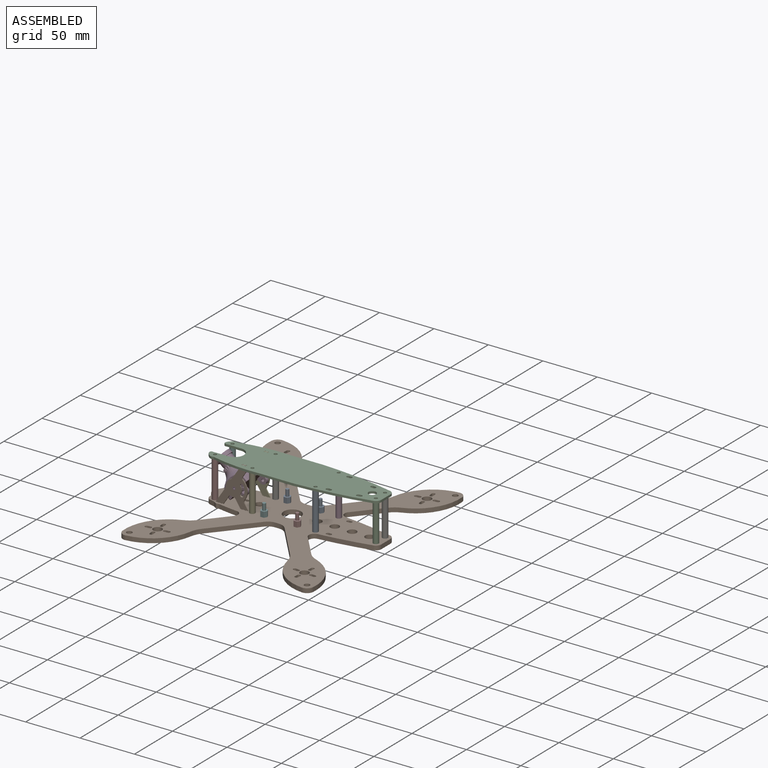
[diagram: assembled view]
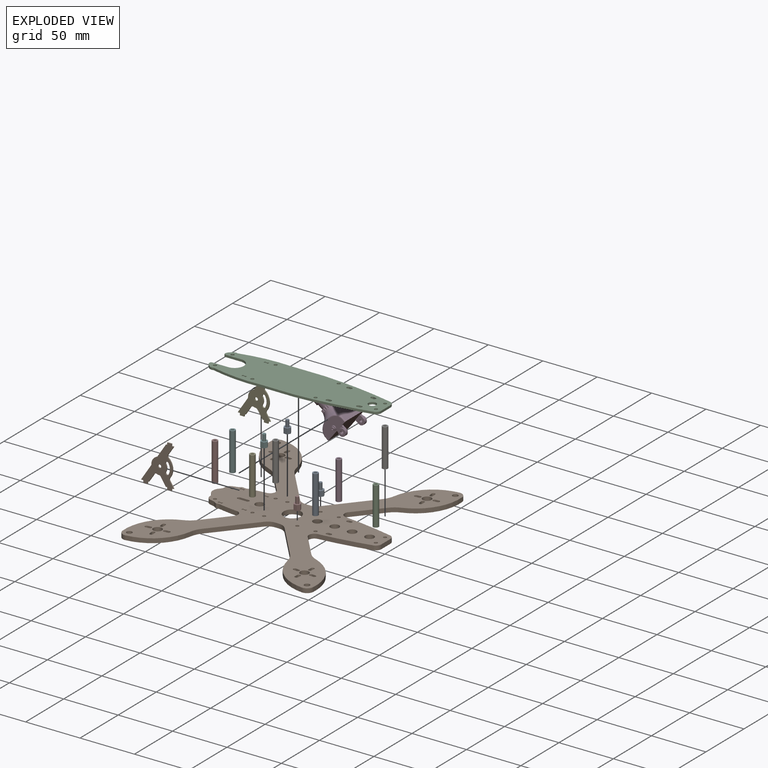
[diagram: exploded view]
GUIDED TOUR — MATED ASSEMBLY (Onshape document 0e64cf59f0e2e8e5c947b342, AutoMate assembly 0e64cf59f0e2e8e5c947b342_09d4eaabf75cbf27453308b6_e73a0a01578c468ebd3c7595_default)

This assembly has 17 components, labeled P0..P16 below (a component is one placed occurrence of a part; the same part can appear more than once), held together by 33 mates. A mate is a constraint between two components; its type names the relative motion it leaves free:
  CYLINDRICAL — leaves both rotation about and translation along the listed axis free,
  PLANAR — leaves sliding in the plane through the listed point (normal = the listed direction) and rotation about that normal free.
Axis/direction vectors are unit vectors and 'through' points are millimeter coordinates, both in the assembly's world frame.

MATES
  1. CYLINDRICAL "Cylindrical 3": P14 <-> P1, axis (0.000, 0.000, -1.000) through (-26.00, 15.25, 21.50) mm
  2. CYLINDRICAL "Cylindrical 4": P4 <-> P1, axis (0.000, 0.000, -1.000) through (-26.00, -15.25, 21.50) mm
  3. PLANAR "Planar 9": P14 <-> P1, direction (0.000, 0.000, -1.000) through (-26.00, 15.25, 4.00) mm
  4. CYLINDRICAL "Cylindrical 10": P10 <-> P6, axis (0.000, 0.000, 1.000) through (81.00, 6.00, 41.00) mm
  5. PLANAR "Planar 17": P7 <-> P1, direction (0.000, 0.000, -1.000) through (15.25, -15.25, 4.00) mm
  6. PLANAR "Planar 26": P12 <-> P3, direction (0.000, -1.000, 0.000) through (-41.80, 14.00, 18.76) mm
  7. PLANAR "Planar 7": P15 <-> P1, direction (0.000, 0.000, -1.000) through (-63.00, -11.50, 4.00) mm
  8. CYLINDRICAL "Cylindrical 5": P11 <-> P1, axis (0.000, 0.000, -1.000) through (32.00, 15.25, 21.50) mm
  9. CYLINDRICAL "Cylindrical 1": P15 <-> P1, axis (0.000, 0.000, -1.000) through (-63.00, -11.50, 4.00) mm
  10. PLANAR "Planar 27": P12 <-> P1, direction (0.000, 0.000, -1.000) through (-59.00, 14.50, 4.00) mm
  11. CYLINDRICAL "Cylindrical 12": P13 <-> P1, axis (0.000, 0.000, -1.000) through (-15.25, -15.25, 12.00) mm
  12. CYLINDRICAL "Cylindrical 8": P10 <-> P4, axis (0.000, 0.000, -1.000) through (-26.00, -15.25, 39.00) mm
  13. PLANAR "Planar 22": P9 <-> P1, direction (-1.000, 0.000, 0.000) through (-58.00, -14.50, 3.00) mm
  14. PLANAR "Planar 8": P5 <-> P1, direction (0.000, 0.000, -1.000) through (-63.00, 11.50, 4.00) mm
  15. PLANAR "Planar 19": P0 <-> P1, direction (0.000, 0.000, -1.000) through (15.25, 15.25, 4.00) mm
  16. PLANAR "Planar 18": P16 <-> P1, direction (0.000, 0.000, -1.000) through (-15.25, 15.25, 4.00) mm
  17. CYLINDRICAL "Cylindrical 9": P6 <-> P1, axis (0.000, 0.000, -1.000) through (81.00, 6.00, 21.50) mm
  18. PLANAR "Planar 23": P9 <-> P1, direction (0.000, 0.000, -1.000) through (-60.00, -14.50, 4.00) mm
  19. CYLINDRICAL "Cylindrical 11": P10 <-> P2, axis (0.000, 0.000, 1.000) through (81.00, -6.00, 41.00) mm
  20. PLANAR "Planar 13": P2 <-> P1, direction (0.000, 0.000, -1.000) through (81.00, -6.00, 4.00) mm
  21. PLANAR "Planar 25": P3 <-> P9, direction (0.000, -1.000, 0.000) through (-43.00, -14.00, 19.50) mm
  22. PLANAR "Planar 10": P4 <-> P1, direction (0.000, 0.000, -1.000) through (-26.00, -15.25, 4.00) mm
  23. PLANAR "Planar 11": P6 <-> P1, direction (0.000, 0.000, -1.000) through (81.00, 6.00, 4.00) mm
  24. PLANAR "Planar 16": P13 <-> P1, direction (0.000, 0.000, -1.000) through (-15.25, -18.00, 4.00) mm
  25. PLANAR "Planar 21": P9 <-> P1, direction (0.000, -1.000, 0.000) through (-60.00, -15.00, 4.00) mm
  26. CYLINDRICAL "Cylindrical 2": P5 <-> P1, axis (0.000, 0.000, -1.000) through (-63.00, 11.50, 21.50) mm
  27. CYLINDRICAL "Cylindrical 15": P3 <-> P9, axis (0.000, -1.000, 0.000) through (-43.00, -13.00, 19.50) mm
  28. CYLINDRICAL "Cylindrical 7": P1 <-> P8, axis (0.000, 0.000, 1.000) through (32.00, -15.25, 4.00) mm
  29. PLANAR "Planar 12": P8 <-> P1, direction (0.000, 0.000, -1.000) through (32.00, -15.25, 4.00) mm
  30. CYLINDRICAL "Cylindrical 6": P8 <-> P1, axis (0.000, 0.000, -1.000) through (32.00, -15.25, 21.50) mm
  31. PLANAR "Planar 14": P11 <-> P1, direction (0.000, 0.000, -1.000) through (32.00, 15.25, 4.00) mm
  32. CYLINDRICAL "Cylindrical 16": P12 <-> P3, axis (0.000, 1.000, 0.000) through (-43.00, 14.50, 19.50) mm
  33. PLANAR "Planar 15": P10 <-> P2, direction (0.000, 0.000, -1.000) through (32.00, 15.25, 39.00) mm

ASSEMBLY ORDER
  1. P8 — the base component [order verified]
  2. P2 [order verified]
  3. P6 [order verified]
  4. P4 [order verified]
  5. P14 [order verified]
  6. P11 [order verified]
  7. P3 [order verified]
  8. P10 [order verified]
  9. P1 [order verified]
  10. P9 [order verified]
  11. P12 [order verified]
  12. P16 [order verified]
  13. P15 [order verified]
  14. P13 [order verified]
  15. P7 [order verified]
  16. P0 [order verified]
  17. P5 [order verified]
Order-tag legend:
  [order verified] — this step's position reverses a verified removal order: the component was checked to insert without passing through the ones already placed.

Of the 17 components, 16 carry the full construction recipe — the FeatureScript program that regenerates the part's solid from scratch; the rest are supplied as boundary geometry only.
Because this assembly has more than 12 components, the tour below covers the 12 most significant ones individually (every recipe-attached component first, then the largest by part volume), in assembly order; the remaining 5 are summarized together in a grouped section at the end.
Each toured component is shown spotlighted twice — in the assembled view, then in the exploded view, where a leader line traces a displaced component back to its assembled socket (saturated green if recipe-attached, orange if geometry-only; every other component desaturated gray) — followed by its recipe or geometry summary and the mates that hold it.
NOTE — this tour is split across 2 documents so each fits a 32k-token context. This is document 1: the component sections continue in the remaining 1 document, each repeating the header above.
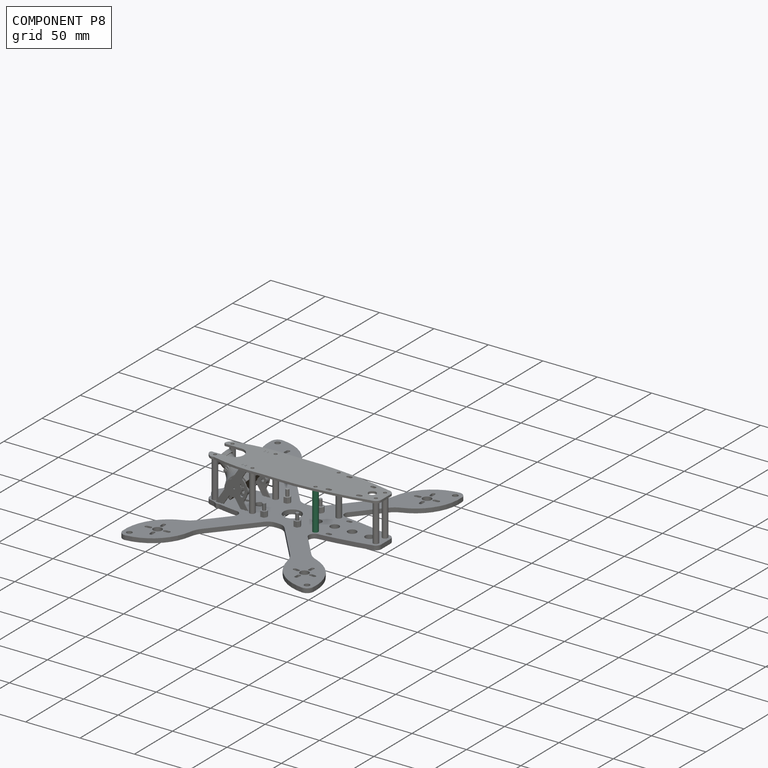
[diagram: component P8 — assembled]
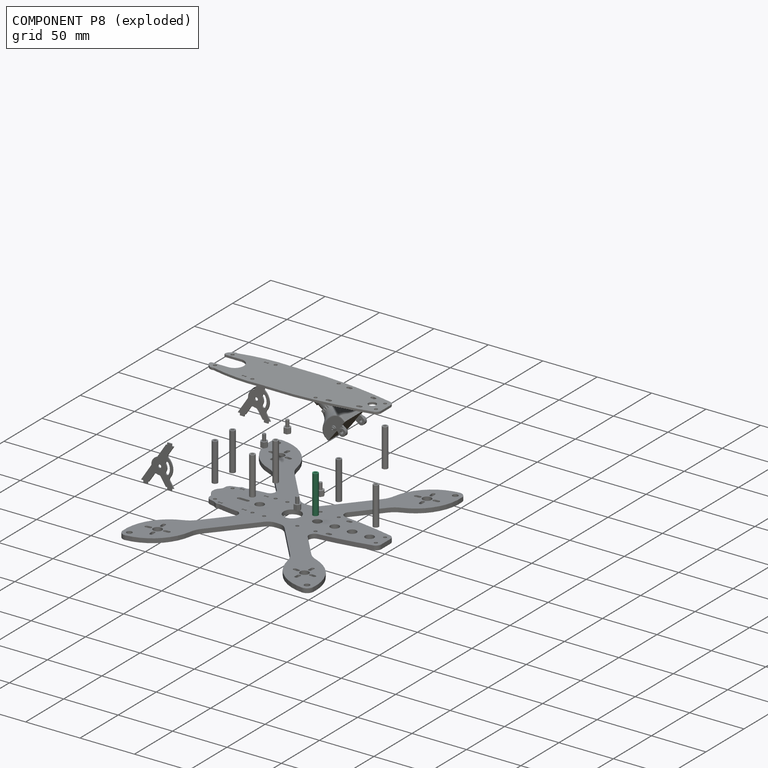
[diagram: component P8 — exploded]
COMPONENT P8 — same part as P2 (CADFS 00147421); its construction recipe is shown at P2.
Held by: CYLINDRICAL mate "Cylindrical 7" to P1; PLANAR mate "Planar 12" to P1; CYLINDRICAL mate "Cylindrical 6" to P1.
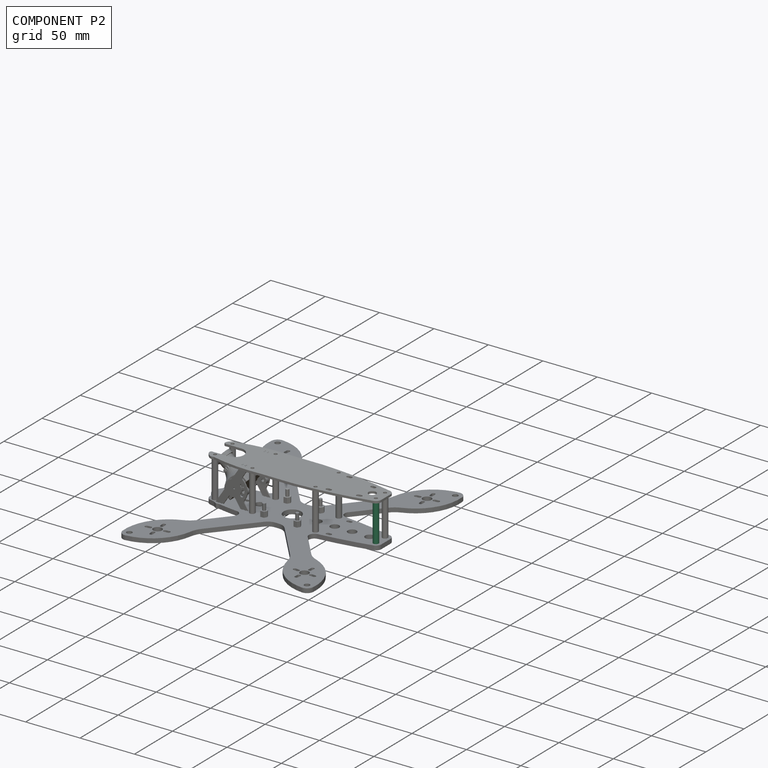
[diagram: component P2 — assembled]
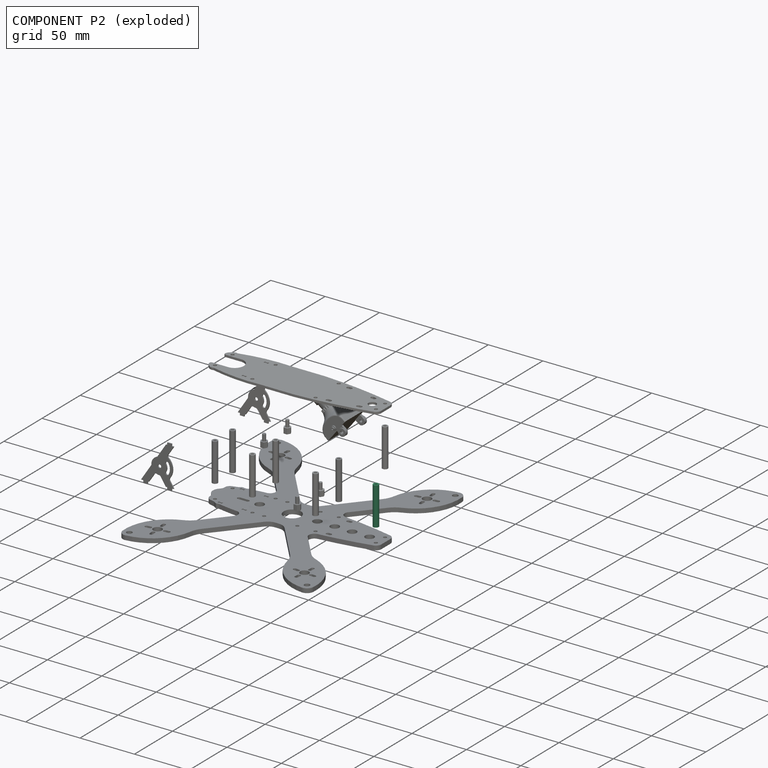
[diagram: component P2 — exploded]
COMPONENT P2 — recipe-attached (CADFS 00147421, mesh-verified: the recipe's output STEP matches this component's geometry to below the mesh-comparison resolution (tessellation chordal tolerance ~0.0536 mm)).
Held by: CYLINDRICAL mate "Cylindrical 11" to P10; PLANAR mate "Planar 13" to P1; PLANAR mate "Planar 15" to P10.
Construction recipe (FeatureScript — the CAD program that rebuilds this solid; sketch coordinates are in the units given by the * unit suffixes, e.g. mm):

FeatureScript 1511;
import(path : "onshape/std/geometry.fs", version : "1511.0");
import(path : "onshape/std/common.fs", version : "1511.0");
const mm = millimeter;
const VERTEX = EntityType.VERTEX;
const EDGE = EntityType.EDGE;
const FACE = EntityType.FACE;
const BODY = EntityType.BODY;
function v(x, y){return vector(x, y);}
function OD(order){return orderDisambiguation(order);}
function OSD(set){return originalSetDisambiguation(set);}
function TD(topology){return topologyDisambiguation(topology);}
function TDD(query){return trueDependencyDisambiguation(query);}
function sQuery(a, b, c) {return sketchEntityQuery(a, b, c);}

annotation { "Feature Type Name" : "Feature", "Feature Type Description" : "" }
export const myFeature = defineFeature(function(context is Context, id is Id, definition is map)
    precondition{}
    {
        {
            var Q0;
            Q0=qCreatedBy(makeId("Top.planeOp"),FACE);
            var sketch = newSketch(context, id + "F0", { "sketchPlane" : qUnion([Q0])});
            skCircle(sketch, "E0", {"center": v(0, 0) * mm, "radius": 2.5 * mm});
            skCircle(sketch, "E1", {"center": v(0, 0) * mm, "radius": 1.25 * mm});
            skSolve(sketch);
        }
        {
            var Q0;
            Q0=qSketchRegion(id+"F0",true);
            extrude(context, id + "F1", {"entities" : qUnion([Q0]), "depth" : 35 * mm});
        }
    });
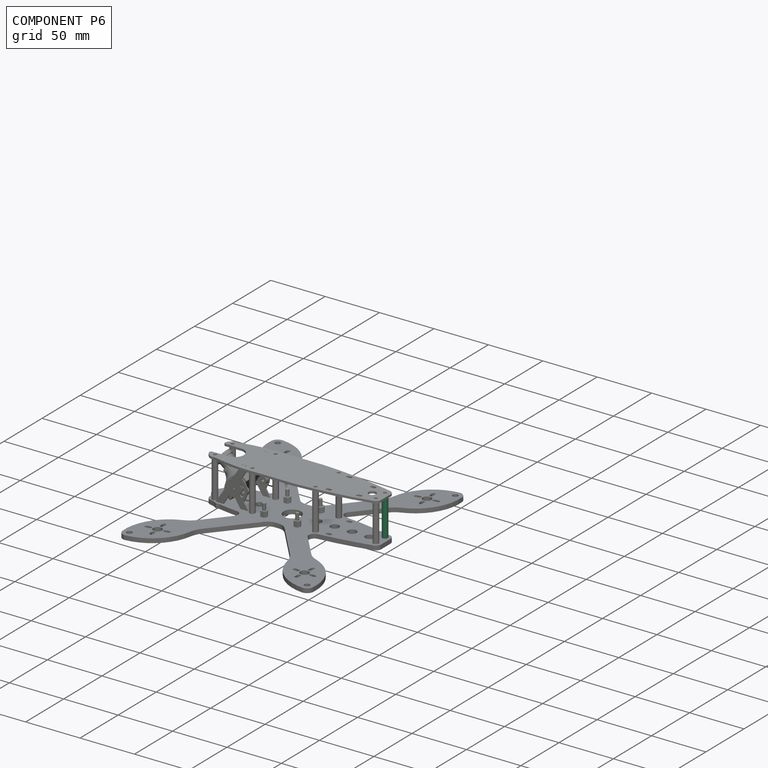
[diagram: component P6 — assembled]
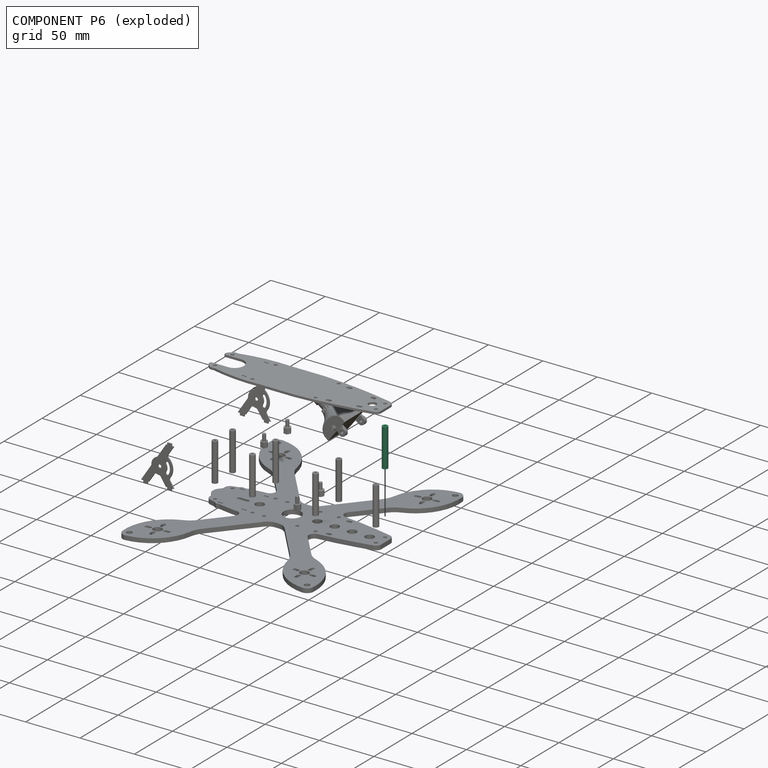
[diagram: component P6 — exploded]
COMPONENT P6 — same part as P2 (CADFS 00147421); its construction recipe is shown at P2.
Held by: CYLINDRICAL mate "Cylindrical 10" to P10; CYLINDRICAL mate "Cylindrical 9" to P1; PLANAR mate "Planar 11" to P1.
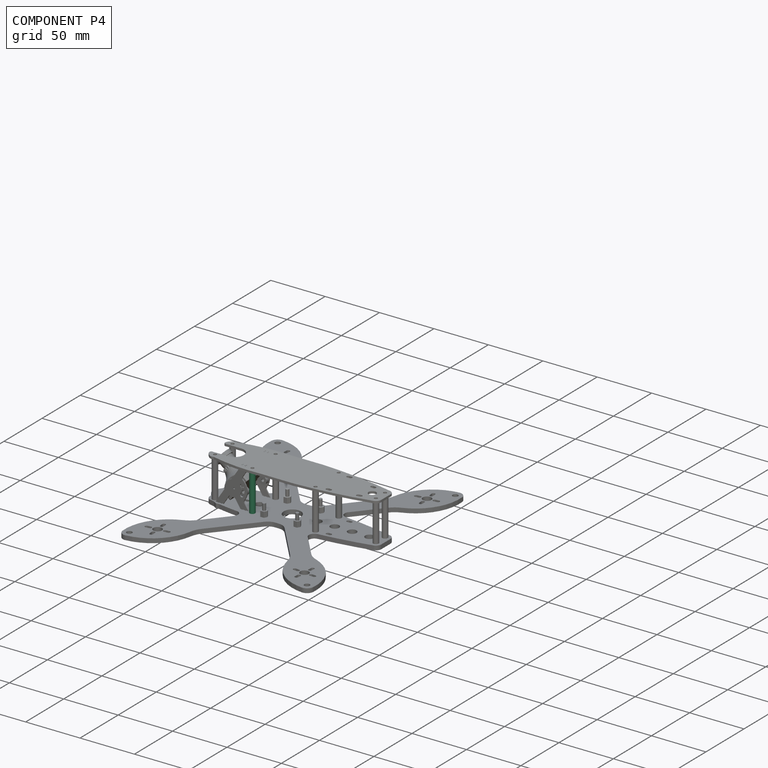
[diagram: component P4 — assembled]
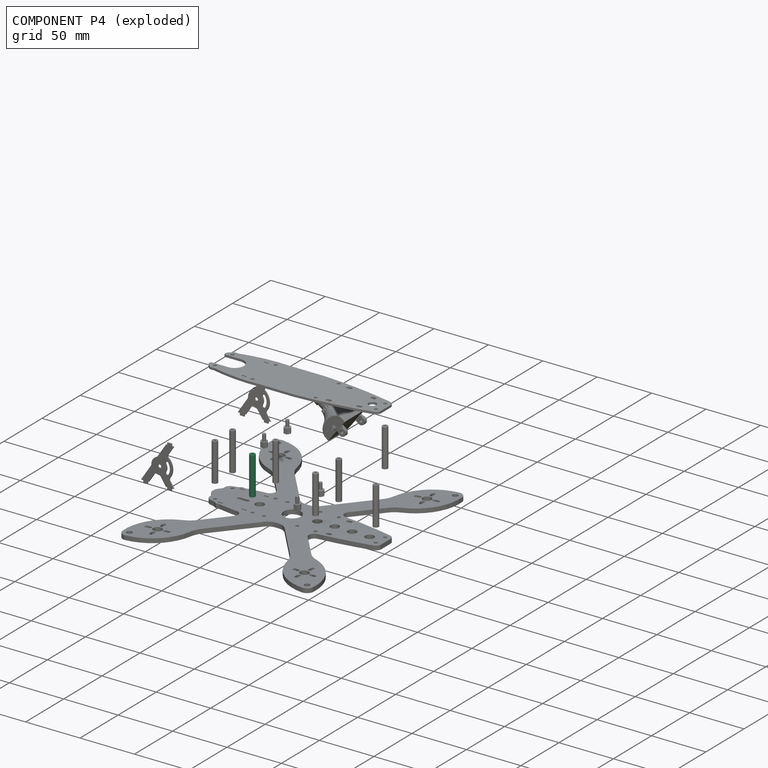
[diagram: component P4 — exploded]
COMPONENT P4 — same part as P2 (CADFS 00147421); its construction recipe is shown at P2.
Held by: CYLINDRICAL mate "Cylindrical 4" to P1; CYLINDRICAL mate "Cylindrical 8" to P10; PLANAR mate "Planar 10" to P1.
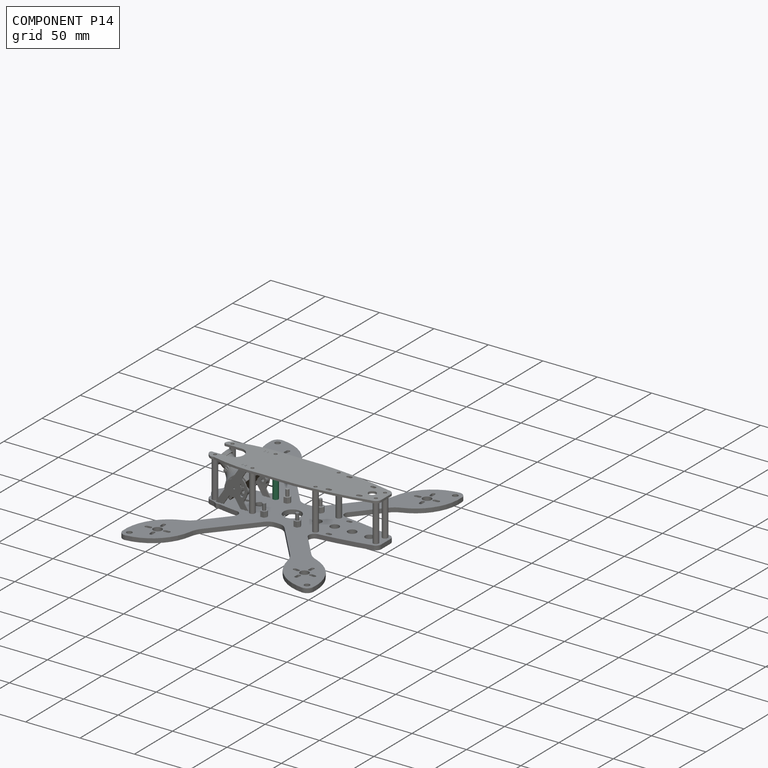
[diagram: component P14 — assembled]
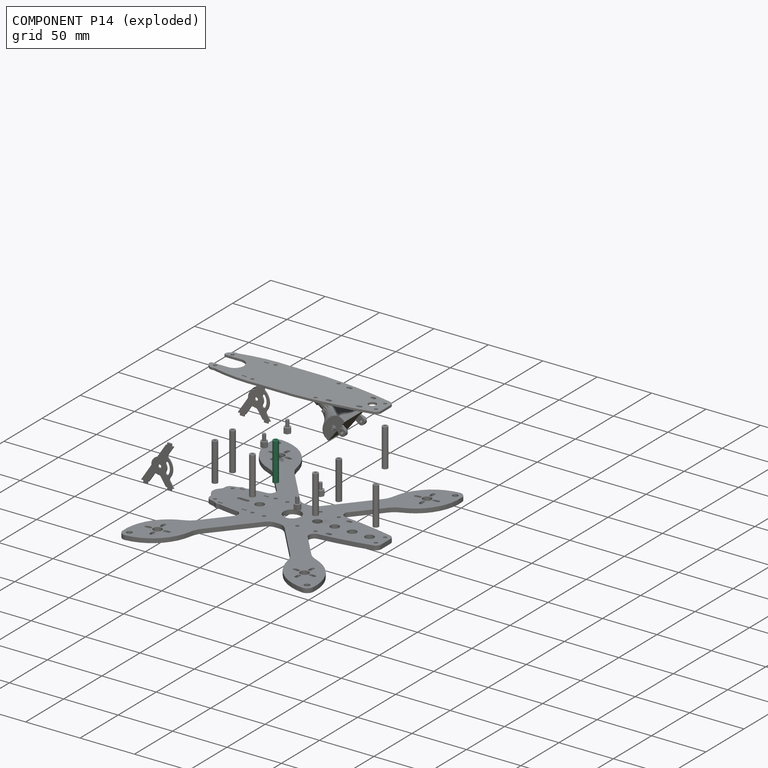
[diagram: component P14 — exploded]
COMPONENT P14 — same part as P2 (CADFS 00147421); its construction recipe is shown at P2.
Held by: CYLINDRICAL mate "Cylindrical 3" to P1; PLANAR mate "Planar 9" to P1.
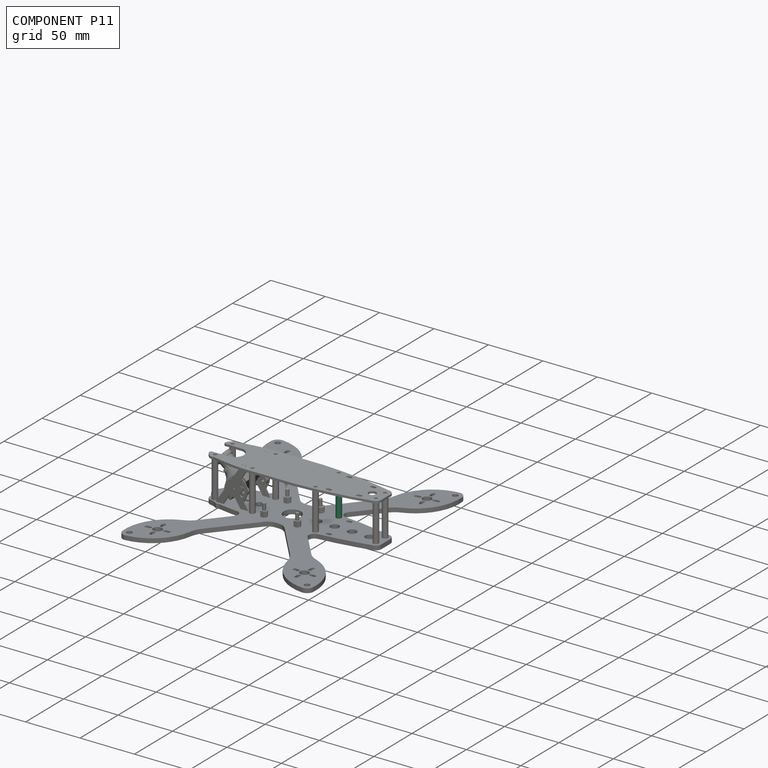
[diagram: component P11 — assembled]
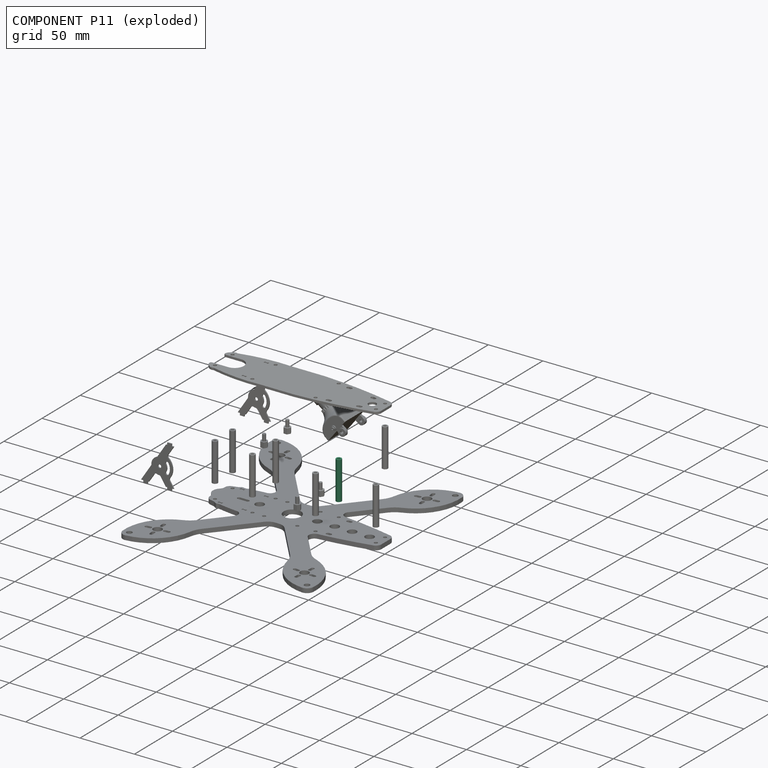
[diagram: component P11 — exploded]
COMPONENT P11 — same part as P2 (CADFS 00147421); its construction recipe is shown at P2.
Held by: CYLINDRICAL mate "Cylindrical 5" to P1; PLANAR mate "Planar 14" to P1.
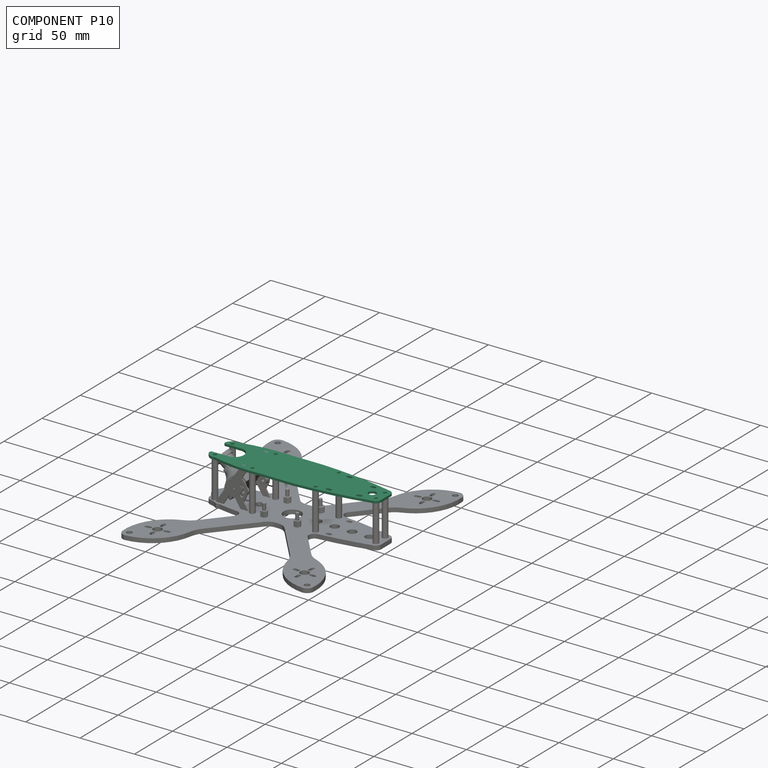
[diagram: component P10 — assembled]
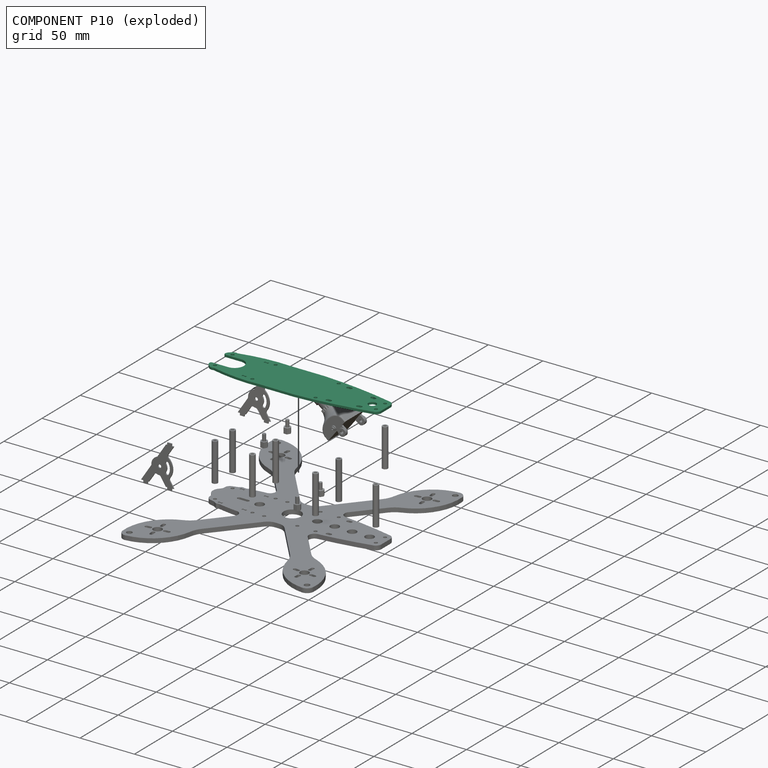
[diagram: component P10 — exploded]
COMPONENT P10 — recipe-attached (CADFS 00147419, mesh-verified: the recipe's output STEP matches this component's geometry to below the mesh-comparison resolution (tessellation chordal tolerance ~0.24 mm)).
Held by: CYLINDRICAL mate "Cylindrical 10" to P6; CYLINDRICAL mate "Cylindrical 8" to P4; CYLINDRICAL mate "Cylindrical 11" to P2; PLANAR mate "Planar 15" to P2.
Construction recipe (FeatureScript — the CAD program that rebuilds this solid; sketch coordinates are in the units given by the * unit suffixes, e.g. mm):

FeatureScript 1511;
import(path : "onshape/std/geometry.fs", version : "1511.0");
import(path : "onshape/std/common.fs", version : "1511.0");
const mm = millimeter;
const VERTEX = EntityType.VERTEX;
const EDGE = EntityType.EDGE;
const FACE = EntityType.FACE;
const BODY = EntityType.BODY;
function v(x, y){return vector(x, y);}
function OD(order){return orderDisambiguation(order);}
function OSD(set){return originalSetDisambiguation(set);}
function TD(topology){return topologyDisambiguation(topology);}
function TDD(query){return trueDependencyDisambiguation(query);}
function sQuery(a, b, c) {return sketchEntityQuery(a, b, c);}

annotation { "Feature Type Name" : "Feature", "Feature Type Description" : "" }
export const myFeature = defineFeature(function(context is Context, id is Id, definition is map)
    precondition{}
    {
        {
            var Q0;
            Q0=qCreatedBy(makeId("Top.planeOp"),FACE);
            var sketch = newSketch(context, id + "F0", { "sketchPlane" : qUnion([Q0])});
            skLineSegment(sketch, "E0", {"start": v(-44.5, 0) * mm, "end": v(86, 0) * mm, "construction": true});
            skLineSegment(sketch, "E1", {"start": v(-69, 9.77) * mm, "end": v(-69, 10) * mm});
            skLineSegment(sketch, "E2", {"start": v(-15.25, 20) * mm, "end": v(15.25, 20) * mm});
            skLineSegment(sketch, "E3", {"start": v(86, 0) * mm, "end": v(86, 6.03) * mm});
            skArc(sketch, "E4", {"start": v(-15.25, 20) * mm, "mid": v(-38.16, 19.65) * mm, "end": v(-60.74, 15.81) * mm});
            skArc(sketch, "E5", {"start": v(82.11, 10.9) * mm, "mid": v(48.88, 16.94) * mm, "end": v(15.25, 20) * mm});
            skPoint(sketch, "E6.visualSharp", {"position": v(-69, 13.5) * mm});
            skArc(sketch, "E6.filletArc", {"start": v(-67.03, 13.75) * mm, "mid": v(-68.48, 11.99) * mm, "end": v(-69, 9.77) * mm});
            skPoint(sketch, "E7.visualSharp", {"position": v(86, 10) * mm});
            skArc(sketch, "E7.filletArc", {"start": v(86, 6.03) * mm, "mid": v(84.9, 9.15) * mm, "end": v(82.11, 10.9) * mm});
            skCircle(sketch, "E8", {"center": v(-26, 15.25) * mm, "radius": 1.5 * mm});
            skCircle(sketch, "E9", {"center": v(32, 15.25) * mm, "radius": 1.5 * mm});
            skLineSegment(sketch, "E10.bottom", {"start": v(67.26, 10.83) * mm, "end": v(69.26, 10.48) * mm});
            skLineSegment(sketch, "E10.top", {"start": v(66.74, 7.88) * mm, "end": v(68.74, 7.52) * mm});
            skArc(sketch, "E11", {"start": v(67.26, 10.83) * mm, "mid": v(65.52, 9.61) * mm, "end": v(66.74, 7.88) * mm});
            skArc(sketch, "E12", {"start": v(68.74, 7.52) * mm, "mid": v(70.48, 8.74) * mm, "end": v(69.26, 10.48) * mm});
            skLineSegment(sketch, "E13.bottom", {"start": v(42, 15) * mm, "end": v(44, 15) * mm});
            skLineSegment(sketch, "E13.top", {"start": v(42, 12) * mm, "end": v(44, 12) * mm});
            skArc(sketch, "E14", {"start": v(44, 12) * mm, "mid": v(45.5, 13.5) * mm, "end": v(44, 15) * mm});
            skArc(sketch, "E15", {"start": v(42, 15) * mm, "mid": v(40.5, 13.5) * mm, "end": v(42, 12) * mm});
            skLineSegment(sketch, "E16.bottom", {"start": v(-67.5, 8.5) * mm, "end": v(-53, 8.5) * mm});
            skPoint(sketch, "E17.orphan", {"position": v(-69, 0) * mm});
            skArc(sketch, "E18", {"start": v(-44.5, 0) * mm, "mid": v(-46.99, 6.01) * mm, "end": v(-53, 8.5) * mm});
            skCircle(sketch, "E19", {"center": v(-63, 11.5) * mm, "radius": 1.5 * mm});
            skPoint(sketch, "E20.visualSharp", {"position": v(-69, 8.5) * mm});
            skArc(sketch, "E20.filletArc", {"start": v(-69, 10) * mm, "mid": v(-68.56, 8.94) * mm, "end": v(-67.5, 8.5) * mm});
            skLineSegment(sketch, "E21", {"start": v(67.26, 10.83) * mm, "end": v(67, 9.35) * mm, "construction": true});
            skLineSegment(sketch, "E22", {"start": v(69.26, 10.48) * mm, "end": v(69, 9) * mm, "construction": true});
            skArc(sketch, "E23.MirrorCS", {"start": v(68.74, -7.52) * mm, "mid": v(70.48, -8.74) * mm, "end": v(69.26, -10.48) * mm});
            skLineSegment(sketch, "E24.MirrorCS", {"start": v(67.26, -10.83) * mm, "end": v(69.26, -10.48) * mm});
            skLineSegment(sketch, "E25.MirrorCS", {"start": v(67.26, -10.83) * mm, "end": v(67, -9.35) * mm, "construction": true});
            skLineSegment(sketch, "E26.MirrorCS", {"start": v(69.26, -10.48) * mm, "end": v(69, -9) * mm, "construction": true});
            skArc(sketch, "E27.MirrorCS", {"start": v(-69, -10) * mm, "mid": v(-68.56, -8.94) * mm, "end": v(-67.5, -8.5) * mm});
            skLineSegment(sketch, "E28.MirrorCS", {"start": v(-69, -9.77) * mm, "end": v(-69, -10) * mm});
            skLineSegment(sketch, "E29.MirrorCS", {"start": v(66.74, -7.88) * mm, "end": v(68.74, -7.52) * mm});
            skArc(sketch, "E30.MirrorCS", {"start": v(44, -12) * mm, "mid": v(45.5, -13.5) * mm, "end": v(44, -15) * mm});
            skArc(sketch, "E31.MirrorCS", {"start": v(67.26, -10.83) * mm, "mid": v(65.52, -9.61) * mm, "end": v(66.74, -7.88) * mm});
            skLineSegment(sketch, "E32.MirrorCS", {"start": v(42, -15) * mm, "end": v(44, -15) * mm});
            skLineSegment(sketch, "E33.MirrorCS", {"start": v(42, -12) * mm, "end": v(44, -12) * mm});
            skArc(sketch, "E34.MirrorCS", {"start": v(42, -15) * mm, "mid": v(40.5, -13.5) * mm, "end": v(42, -12) * mm});
            skLineSegment(sketch, "E35.MirrorCS", {"start": v(-67.5, -8.5) * mm, "end": v(-53, -8.5) * mm});
            skArc(sketch, "E36.MirrorCS", {"start": v(86, -6.03) * mm, "mid": v(84.9, -9.15) * mm, "end": v(82.11, -10.9) * mm});
            skCircle(sketch, "E37.MirrorC", {"center": v(-26, -15.25) * mm, "radius": 1.5 * mm});
            skArc(sketch, "E38.MirrorCS", {"start": v(-67.03, -13.75) * mm, "mid": v(-68.48, -11.99) * mm, "end": v(-69, -9.77) * mm});
            skCircle(sketch, "E39.MirrorC", {"center": v(-63, -11.5) * mm, "radius": 1.5 * mm});
            skCircle(sketch, "E40.MirrorC", {"center": v(32, -15.25) * mm, "radius": 1.5 * mm});
            skPoint(sketch, "E41.MirrorP", {"position": v(-69, -8.5) * mm});
            skPoint(sketch, "E42.MirrorP", {"position": v(-69, -13.5) * mm});
            skArc(sketch, "E43.MirrorCS", {"start": v(-44.5, 0) * mm, "mid": v(-46.99, -6.01) * mm, "end": v(-53, -8.5) * mm});
            skArc(sketch, "E44.MirrorCS", {"start": v(-15.25, -20) * mm, "mid": v(-38.16, -19.65) * mm, "end": v(-60.74, -15.81) * mm});
            skArc(sketch, "E45.MirrorCS", {"start": v(82.11, -10.9) * mm, "mid": v(48.88, -16.94) * mm, "end": v(15.25, -20) * mm});
            skLineSegment(sketch, "E46.MirrorCS", {"start": v(-15.25, -20) * mm, "end": v(15.25, -20) * mm});
            skPoint(sketch, "E47.MirrorP", {"position": v(86, -10) * mm});
            skLineSegment(sketch, "E48.MirrorCS", {"start": v(86, 0) * mm, "end": v(86, -6.03) * mm});
            skCircle(sketch, "E49", {"center": v(73.5, 0) * mm, "radius": 3.5 * mm});
            skArc(sketch, "E50", {"start": v(-61.77, 15.83) * mm, "mid": v(-64.47, 15.75) * mm, "end": v(-66.63, 14.15) * mm});
            skPoint(sketch, "E51.orphan", {"position": v(-65.37, 14.58) * mm});
            skPoint(sketch, "E52.visualSharp", {"position": v(-61.31, 15.67) * mm});
            skArc(sketch, "E52.filletArc", {"start": v(-61.77, 15.83) * mm, "mid": v(-61.26, 15.75) * mm, "end": v(-60.74, 15.81) * mm});
            skPoint(sketch, "E53.visualSharp", {"position": v(-66.8, 13.92) * mm});
            skArc(sketch, "E53.filletArc", {"start": v(-67.03, 13.75) * mm, "mid": v(-66.82, 13.94) * mm, "end": v(-66.63, 14.15) * mm});
            skArc(sketch, "E54", {"start": v(-66.63, -14.15) * mm, "mid": v(-64.47, -15.75) * mm, "end": v(-61.77, -15.83) * mm});
            skPoint(sketch, "E55.orphan", {"position": v(-65.37, -14.58) * mm});
            skPoint(sketch, "E56.visualSharp", {"position": v(-66.8, -13.92) * mm});
            skArc(sketch, "E56.filletArc", {"start": v(-66.63, -14.15) * mm, "mid": v(-66.82, -13.94) * mm, "end": v(-67.03, -13.75) * mm});
            skPoint(sketch, "E57.visualSharp", {"position": v(-61.31, -15.67) * mm});
            skArc(sketch, "E57.filletArc", {"start": v(-60.74, -15.81) * mm, "mid": v(-61.26, -15.75) * mm, "end": v(-61.77, -15.83) * mm});
            skCircle(sketch, "E58", {"center": v(81, 6) * mm, "radius": 1.5 * mm});
            skCircle(sketch, "E59", {"center": v(81, -6) * mm, "radius": 1.5 * mm});
            skLineSegment(sketch, "E60", {"start": v(81, 6.03) * mm, "end": v(81, 6) * mm, "construction": true});
            skLineSegment(sketch, "E61", {"start": v(81, -6) * mm, "end": v(81, -6.03) * mm, "construction": true});
            skSolve(sketch);
        }
        {
            var Q0;
            Q0=makeQuery(id+"F0.imprint","IMPRINT",FACE,{"disambiguationData":[TD([[makeQuery(id+"F0.imprint","IMPRINT",EDGE,{"derivedFrom":sQuery(id+"F0.wireOp",EDGE,"E2")}),-1.0]])]});
            extrude(context, id + "F1", {"entities" : qUnion([Q0]), "depth" : 2 * mm});
        }
        {
            var Q0;
            Q0=makeQuery(id+"F1.opExtrude","CAP_FACE",FACE,{"disambiguationData":[OSD([sQuery(id+"F0.wireOp",EDGE,"E2"),sQuery(id+"F0.wireOp",EDGE,"E3"),sQuery(id+"F0.wireOp",EDGE,"E4"),sQuery(id+"F0.wireOp",EDGE,"E5"),sQuery(id+"F0.wireOp",EDGE,"E6.filletArc"),sQuery(id+"F0.wireOp",EDGE,"E7.filletArc"),sQuery(id+"F0.wireOp",EDGE,"E8"),sQuery(id+"F0.wireOp",EDGE,"E9"),sQuery(id+"F0.wireOp",EDGE,"qYgZW7lB-CMnV-piOl-7c3a-DXn0YMV1QPsr"),sQuery(id+"F0.wireOp",EDGE,"E10.bottom"),sQuery(id+"F0.wireOp",EDGE,"E10.top"),sQuery(id+"F0.wireOp",EDGE,"E11"),sQuery(id+"F0.wireOp",EDGE,"E12"),sQuery(id+"F0.wireOp",EDGE,"E13.bottom"),sQuery(id+"F0.wireOp",EDGE,"E13.top"),sQuery(id+"F0.wireOp",EDGE,"E14"),sQuery(id+"F0.wireOp",EDGE,"E15"),sQuery(id+"F0.wireOp",EDGE,"E16.bottom"),sQuery(id+"F0.wireOp",EDGE,"E18"),sQuery(id+"F0.wireOp",EDGE,"E19"),sQuery(id+"F0.wireOp",EDGE,"E20.filletArc"),sQuery(id+"F0.wireOp",EDGE,"0b4e915d-b4a6-4427-af53-a3d2afabc14c0.MirrorC"),sQuery(id+"F0.wireOp",EDGE,"E23.MirrorCS"),sQuery(id+"F0.wireOp",EDGE,"E24.MirrorCS"),sQuery(id+"F0.wireOp",EDGE,"E27.MirrorCS"),sQuery(id+"F0.wireOp",EDGE,"E29.MirrorCS"),sQuery(id+"F0.wireOp",EDGE,"E30.MirrorCS"),sQuery(id+"F0.wireOp",EDGE,"E31.MirrorCS"),sQuery(id+"F0.wireOp",EDGE,"E32.MirrorCS"),sQuery(id+"F0.wireOp",EDGE,"E33.MirrorCS"),sQuery(id+"F0.wireOp",EDGE,"E34.MirrorCS"),sQuery(id+"F0.wireOp",EDGE,"E35.MirrorCS"),sQuery(id+"F0.wireOp",EDGE,"E36.MirrorCS"),sQuery(id+"F0.wireOp",EDGE,"E37.MirrorC"),sQuery(id+"F0.wireOp",EDGE,"E38.MirrorCS"),sQuery(id+"F0.wireOp",EDGE,"E39.MirrorC"),sQuery(id+"F0.wireOp",EDGE,"E40.MirrorC"),sQuery(id+"F0.wireOp",EDGE,"E43.MirrorCS"),sQuery(id+"F0.wireOp",EDGE,"E44.MirrorCS"),sQuery(id+"F0.wireOp",EDGE,"E45.MirrorCS"),sQuery(id+"F0.wireOp",EDGE,"E46.MirrorCS"),sQuery(id+"F0.wireOp",EDGE,"E48.MirrorCS"),sQuery(id+"F0.wireOp",EDGE,"E49"),sQuery(id+"F0.wireOp",EDGE,"E50"),sQuery(id+"F0.wireOp",EDGE,"E52.filletArc"),sQuery(id+"F0.wireOp",EDGE,"E53.filletArc"),sQuery(id+"F0.wireOp",EDGE,"E54"),sQuery(id+"F0.wireOp",EDGE,"E56.filletArc"),sQuery(id+"F0.wireOp",EDGE,"E57.filletArc")])],"isStart":false});
            var sketch = newSketch(context, id + "F2", { "sketchPlane" : qUnion([Q0])});
            skLineSegment(sketch, "E62.bottom", {"start": v(-35, 15) * mm, "end": v(-33, 15) * mm});
            skLineSegment(sketch, "E62.top", {"start": v(-35, 14) * mm, "end": v(-33, 14) * mm});
            skLineSegment(sketch, "E63.left", {"start": v(-36, 15) * mm, "end": v(-36, 14) * mm});
            skLineSegment(sketch, "E64.left", {"start": v(-32, 15) * mm, "end": v(-32, 14) * mm});
            skArc(sketch, "E65", {"start": v(-35, 15) * mm, "mid": v(-35.5, 15.5) * mm, "end": v(-36, 15) * mm});
            skArc(sketch, "E66", {"start": v(-32, 15) * mm, "mid": v(-32.5, 15.5) * mm, "end": v(-33, 15) * mm});
            skArc(sketch, "E67", {"start": v(-33, 14) * mm, "mid": v(-32.5, 13.5) * mm, "end": v(-32, 14) * mm});
            skArc(sketch, "E68", {"start": v(-36, 14) * mm, "mid": v(-35.5, 13.5) * mm, "end": v(-35, 14) * mm});
            skArc(sketch, "E69.0.1.0", {"start": v(-36, -15) * mm, "mid": v(-35.5, -15.5) * mm, "end": v(-35, -15) * mm});
            skArc(sketch, "E69.0.1.1", {"start": v(-33, -15) * mm, "mid": v(-32.5, -15.5) * mm, "end": v(-32, -15) * mm});
            skArc(sketch, "E69.0.1.2", {"start": v(-35, -14) * mm, "mid": v(-35.5, -13.5) * mm, "end": v(-36, -14) * mm});
            skArc(sketch, "E69.0.1.3", {"start": v(-32, -14) * mm, "mid": v(-32.5, -13.5) * mm, "end": v(-33, -14) * mm});
            skLineSegment(sketch, "E69.0.1.4", {"start": v(-36, -14) * mm, "end": v(-36, -15) * mm});
            skLineSegment(sketch, "E69.0.1.5", {"start": v(-32, -14) * mm, "end": v(-32, -15) * mm});
            skLineSegment(sketch, "E69.0.1.6", {"start": v(-35, -14) * mm, "end": v(-33, -14) * mm});
            skLineSegment(sketch, "E69.0.1.7", {"start": v(-35, -15) * mm, "end": v(-33, -15) * mm});
            skLineSegment(sketch, "E69.direction1", {"start": v(-36, 14) * mm, "end": v(-12.35, 14) * mm, "construction": true});
            skLineSegment(sketch, "E69.direction2", {"start": v(-36, 14) * mm, "end": v(-36, -15) * mm, "construction": true});
            skSolve(sketch);
        }
        {
            var Q0;
            Q0=qSketchRegion(id+"F2",true);
            extrude(context, id + "F3", {"entities" : qUnion([Q0]), "operationType" : NewBodyOperationType.REMOVE, "oppositeDirection" : true, "depth" : 25 * mm});
        }
    });
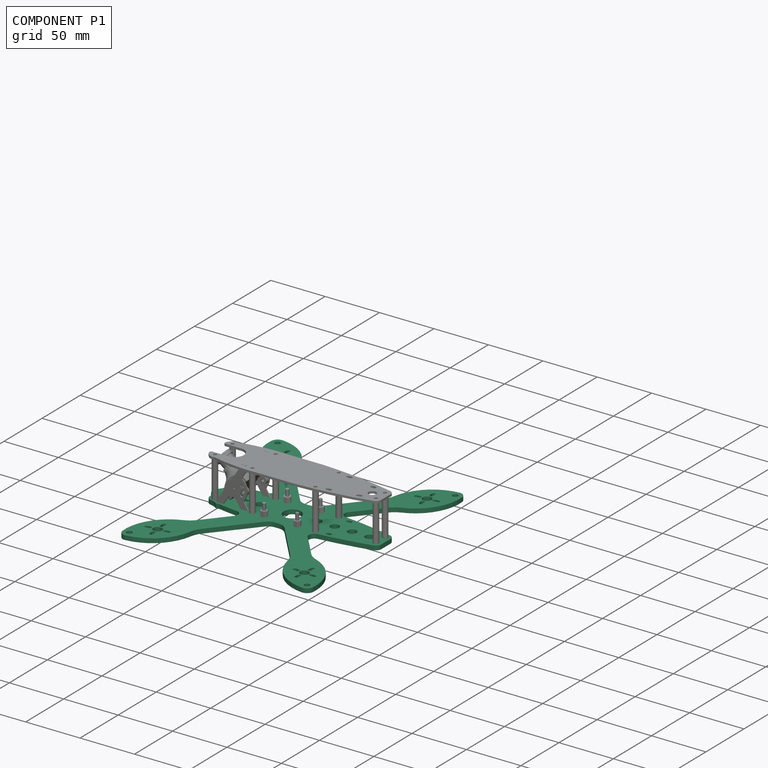
[diagram: component P1 — assembled]
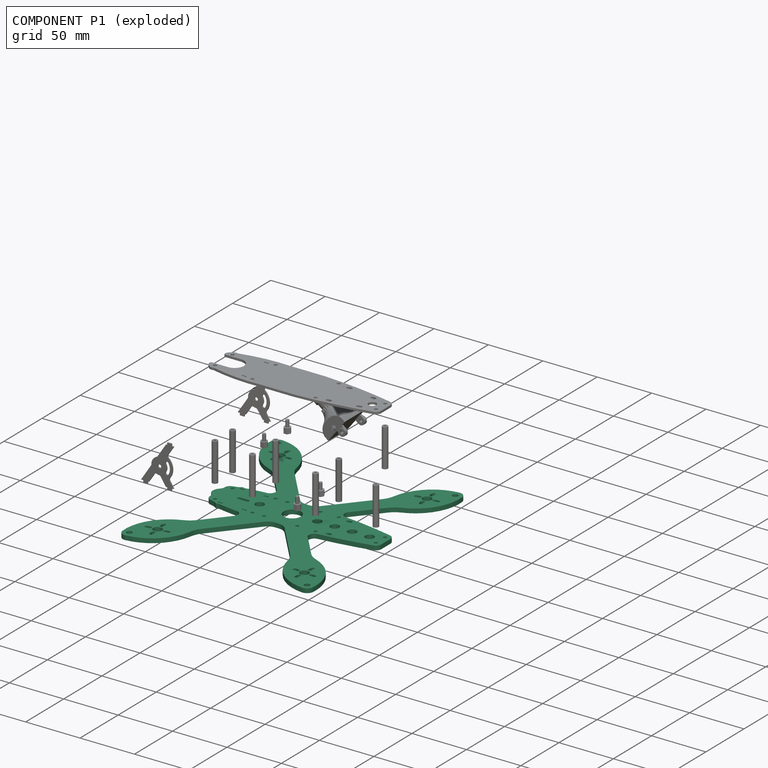
[diagram: component P1 — exploded]
COMPONENT P1 — recipe-attached (CADFS 00147418, mesh-verified: the recipe's output STEP matches this component's geometry to below the mesh-comparison resolution (tessellation chordal tolerance ~0.407 mm)).
Held by: CYLINDRICAL mate "Cylindrical 3" to P14; CYLINDRICAL mate "Cylindrical 4" to P4; PLANAR mate "Planar 9" to P14; PLANAR mate "Planar 17" to P7; PLANAR mate "Planar 7" to P15; CYLINDRICAL mate "Cylindrical 5" to P11; CYLINDRICAL mate "Cylindrical 1" to P15; PLANAR mate "Planar 27" to P12; CYLINDRICAL mate "Cylindrical 12" to P13; PLANAR mate "Planar 22" to P9; PLANAR mate "Planar 8" to P5; PLANAR mate "Planar 19" to P0; PLANAR mate "Planar 18" to P16; CYLINDRICAL mate "Cylindrical 9" to P6; PLANAR mate "Planar 23" to P9; PLANAR mate "Planar 13" to P2; PLANAR mate "Planar 10" to P4; PLANAR mate "Planar 11" to P6; PLANAR mate "Planar 16" to P13; PLANAR mate "Planar 21" to P9; CYLINDRICAL mate "Cylindrical 2" to P5; CYLINDRICAL mate "Cylindrical 7" to P8; PLANAR mate "Planar 12" to P8; CYLINDRICAL mate "Cylindrical 6" to P8; PLANAR mate "Planar 14" to P11.
Construction recipe (FeatureScript — the CAD program that rebuilds this solid; sketch coordinates are in the units given by the * unit suffixes, e.g. mm):

FeatureScript 1511;
import(path : "onshape/std/geometry.fs", version : "1511.0");
import(path : "onshape/std/common.fs", version : "1511.0");
const mm = millimeter;
const VERTEX = EntityType.VERTEX;
const EDGE = EntityType.EDGE;
const FACE = EntityType.FACE;
const BODY = EntityType.BODY;
function v(x, y){return vector(x, y);}
function OD(order){return orderDisambiguation(order);}
function OSD(set){return originalSetDisambiguation(set);}
function TD(topology){return topologyDisambiguation(topology);}
function TDD(query){return trueDependencyDisambiguation(query);}
function sQuery(a, b, c) {return sketchEntityQuery(a, b, c);}

annotation { "Feature Type Name" : "Feature", "Feature Type Description" : "" }
export const myFeature = defineFeature(function(context is Context, id is Id, definition is map)
    precondition{}
    {
        {
            var Q0;
            Q0=qCreatedBy(makeId("Top.planeOp"),FACE);
            var sketch = newSketch(context, id + "F0", { "sketchPlane" : qUnion([Q0])});
            skLineSegment(sketch, "E0.bottom", {"start": v(-1.68, 20) * mm, "end": v(1.68, 20) * mm});
            skLineSegment(sketch, "E0.left", {"start": v(-69, 9.77) * mm, "end": v(-69, 0) * mm});
            skLineSegment(sketch, "E0.right", {"start": v(86, 6.03) * mm, "end": v(86, 0) * mm});
            skArc(sketch, "E1", {"start": v(-15.25, 20) * mm, "mid": v(-16.05, 20.05) * mm, "end": v(-16.86, 20.09) * mm});
            skPoint(sketch, "E2.newPointA", {"position": v(-69, 13.5) * mm});
            skArc(sketch, "E2.filletArc", {"start": v(-65.37, 14.58) * mm, "mid": v(-67.99, 12.79) * mm, "end": v(-69, 9.77) * mm});
            skArc(sketch, "E3", {"start": v(82.11, 10.9) * mm, "mid": v(59.23, 15.39) * mm, "end": v(36.13, 18.46) * mm});
            skPoint(sketch, "E4.newPointA", {"position": v(86, 10) * mm});
            skArc(sketch, "E4.filletArc", {"start": v(86, 6.03) * mm, "mid": v(84.9, 9.15) * mm, "end": v(82.11, 10.9) * mm});
            skCircle(sketch, "E5", {"center": v(0, 0) * mm, "radius": 105 * mm, "construction": true});
            skLineSegment(sketch, "E6", {"start": v(0, 0) * mm, "end": v(67.5, 80.43) * mm, "construction": true});
            skLineSegment(sketch, "E7", {"start": v(0, 0) * mm, "end": v(-67.5, 80.43) * mm, "construction": true});
            skCircle(sketch, "E8", {"center": v(-67.5, 80.43) * mm, "radius": 4 * mm});
            skCircle(sketch, "E9", {"center": v(67.5, 80.43) * mm, "radius": 4 * mm});
            skCircle(sketch, "E10", {"center": v(-67.5, 80.43) * mm, "radius": 16 * mm, "construction": true});
            skCircle(sketch, "E11", {"center": v(67.5, 80.43) * mm, "radius": 16 * mm, "construction": true});
            skLineSegment(sketch, "E12", {"start": v(-40.3, 60.47) * mm, "end": v(-9.34, 23.57) * mm});
            skLineSegment(sketch, "E13.trimOffspring", {"start": v(-52.55, 50.19) * mm, "end": v(-33.87, 27.92) * mm});
            skArc(sketch, "E14.trimOffspring", {"start": v(-37.27, 19.73) * mm, "mid": v(-51.44, 17.82) * mm, "end": v(-65.37, 14.58) * mm});
            skPoint(sketch, "E15.visualSharp", {"position": v(-27.43, 20.25) * mm});
            skArc(sketch, "E15.filletArc", {"start": v(-37.27, 19.73) * mm, "mid": v(-33.09, 22.8) * mm, "end": v(-33.87, 27.92) * mm});
            skLineSegment(sketch, "E16", {"start": v(67.5, 80.43) * mm, "end": v(81.63, 97.29) * mm, "construction": true});
            skArc(sketch, "E17", {"start": v(87.61, 97.8) * mm, "mid": v(85.5, 101.88) * mm, "end": v(81.1, 103.26) * mm});
            skCircle(sketch, "E18", {"center": v(52.07, 62.05) * mm, "radius": 8 * mm, "construction": true});
            skArc(sketch, "E19", {"start": v(81.1, 103.26) * mm, "mid": v(57.22, 92.74) * mm, "end": v(44.67, 69.86) * mm});
            skArc(sketch, "E20", {"start": v(61.04, 56.13) * mm, "mid": v(81.4, 72.46) * mm, "end": v(87.61, 97.8) * mm});
            skLineSegment(sketch, "E21", {"start": v(40.3, 60.47) * mm, "end": v(9.34, 23.57) * mm});
            skLineSegment(sketch, "E22", {"start": v(52.55, 50.19) * mm, "end": v(32.8, 26.64) * mm});
            skPoint(sketch, "E23.newPointA", {"position": v(15.25, 20) * mm});
            skArc(sketch, "E23.filletArc", {"start": v(32.8, 26.64) * mm, "mid": v(32, 21.55) * mm, "end": v(36.13, 18.46) * mm});
            skArc(sketch, "E24.filletArc", {"start": v(1.68, 20) * mm, "mid": v(5.9, 20.94) * mm, "end": v(9.34, 23.57) * mm});
            skPoint(sketch, "E25.visualSharp", {"position": v(-6.34, 20) * mm});
            skArc(sketch, "E25.filletArc", {"start": v(-9.34, 23.57) * mm, "mid": v(-5.9, 20.94) * mm, "end": v(-1.68, 20) * mm});
            skArc(sketch, "E26.filletArc", {"start": v(61.04, 56.13) * mm, "mid": v(56.4, 53.71) * mm, "end": v(52.55, 50.19) * mm});
            skArc(sketch, "E27.filletArc", {"start": v(40.3, 60.47) * mm, "mid": v(43.1, 64.88) * mm, "end": v(44.67, 69.86) * mm});
            skCircle(sketch, "E28", {"center": v(81.63, 97.29) * mm, "radius": 2.5 * mm});
            skLineSegment(sketch, "E29", {"start": v(-67.5, 80.43) * mm, "end": v(-81.63, 97.29) * mm, "construction": true});
            skArc(sketch, "E30", {"start": v(-81.1, 103.26) * mm, "mid": v(-85.5, 101.88) * mm, "end": v(-87.61, 97.8) * mm});
            skCircle(sketch, "E31", {"center": v(-52.07, 62.05) * mm, "radius": 8 * mm, "construction": true});
            skArc(sketch, "E32", {"start": v(-87.61, 97.8) * mm, "mid": v(-81.4, 72.46) * mm, "end": v(-61.04, 56.13) * mm});
            skArc(sketch, "E33", {"start": v(-44.67, 69.86) * mm, "mid": v(-57.22, 92.74) * mm, "end": v(-81.1, 103.26) * mm});
            skArc(sketch, "E34.filletArc", {"start": v(-52.55, 50.19) * mm, "mid": v(-56.4, 53.71) * mm, "end": v(-61.04, 56.13) * mm});
            skArc(sketch, "E35.filletArc", {"start": v(-44.67, 69.86) * mm, "mid": v(-43.1, 64.88) * mm, "end": v(-40.3, 60.47) * mm});
            skCircle(sketch, "E36", {"center": v(-81.63, 97.29) * mm, "radius": 2.5 * mm});
            skLineSegment(sketch, "E37", {"start": v(-69, 0) * mm, "end": v(86, 0) * mm, "construction": true});
            skLineSegment(sketch, "E38.MirrorCS", {"start": v(0, 0) * mm, "end": v(-67.5, -80.43) * mm, "construction": true});
            skLineSegment(sketch, "E39.MirrorCS", {"start": v(0, 0) * mm, "end": v(67.5, -80.43) * mm, "construction": true});
            skLineSegment(sketch, "E40", {"start": v(-67.5, 80.43) * mm, "end": v(-66.1, 96.37) * mm, "construction": true});
            skArc(sketch, "E41", {"start": v(-68.42, 87.04) * mm, "mid": v(-67.06, 85.42) * mm, "end": v(-65.43, 86.78) * mm});
            skArc(sketch, "E42", {"start": v(-65.17, 89.77) * mm, "mid": v(-66.53, 91.4) * mm, "end": v(-68.16, 90.03) * mm});
            skLineSegment(sketch, "E43", {"start": v(-65.17, 89.77) * mm, "end": v(-65.43, 86.78) * mm});
            skLineSegment(sketch, "E44", {"start": v(-68.16, 90.03) * mm, "end": v(-68.42, 87.04) * mm});
            skArc(sketch, "E45.1.0", {"start": v(-74.1, 79.5) * mm, "mid": v(-72.47, 80.87) * mm, "end": v(-73.84, 82.5) * mm});
            skArc(sketch, "E45.1.1", {"start": v(-76.83, 82.76) * mm, "mid": v(-78.45, 81.4) * mm, "end": v(-77.09, 79.77) * mm});
            skLineSegment(sketch, "E45.1.2", {"start": v(-76.83, 82.76) * mm, "end": v(-73.84, 82.5) * mm});
            skLineSegment(sketch, "E45.1.3", {"start": v(-77.09, 79.77) * mm, "end": v(-74.1, 79.5) * mm});
            skArc(sketch, "E45.2.0", {"start": v(-66.56, 73.83) * mm, "mid": v(-67.93, 75.45) * mm, "end": v(-69.55, 74.1) * mm});
            skArc(sketch, "E45.2.1", {"start": v(-69.81, 71.1) * mm, "mid": v(-68.45, 69.48) * mm, "end": v(-66.83, 70.84) * mm});
            skLineSegment(sketch, "E45.2.2", {"start": v(-69.81, 71.1) * mm, "end": v(-69.55, 74.1) * mm});
            skLineSegment(sketch, "E45.2.3", {"start": v(-66.83, 70.84) * mm, "end": v(-66.56, 73.83) * mm});
            skArc(sketch, "E45.3.0", {"start": v(-60.89, 81.36) * mm, "mid": v(-62.51, 80) * mm, "end": v(-61.15, 78.37) * mm});
            skArc(sketch, "E45.3.1", {"start": v(-58.16, 78.11) * mm, "mid": v(-56.53, 79.48) * mm, "end": v(-57.9, 81.1) * mm});
            skLineSegment(sketch, "E45.3.2", {"start": v(-58.16, 78.11) * mm, "end": v(-61.15, 78.37) * mm});
            skLineSegment(sketch, "E45.3.3", {"start": v(-57.9, 81.1) * mm, "end": v(-60.89, 81.36) * mm});
            skLineSegment(sketch, "E46", {"start": v(67.5, 80.43) * mm, "end": v(83.43, 81.83) * mm, "construction": true});
            skArc(sketch, "E47", {"start": v(73.84, 82.5) * mm, "mid": v(72.47, 80.87) * mm, "end": v(74.1, 79.5) * mm});
            skArc(sketch, "E48", {"start": v(77.09, 79.77) * mm, "mid": v(78.45, 81.4) * mm, "end": v(76.83, 82.76) * mm});
            skLineSegment(sketch, "E49", {"start": v(73.84, 82.5) * mm, "end": v(76.83, 82.76) * mm});
            skLineSegment(sketch, "E50", {"start": v(77.09, 79.77) * mm, "end": v(74.1, 79.5) * mm});
            skLineSegment(sketch, "E51.1.0", {"start": v(65.43, 86.78) * mm, "end": v(65.17, 89.77) * mm});
            skArc(sketch, "E51.1.1", {"start": v(68.16, 90.03) * mm, "mid": v(66.53, 91.4) * mm, "end": v(65.17, 89.77) * mm});
            skArc(sketch, "E51.1.2", {"start": v(65.43, 86.78) * mm, "mid": v(67.06, 85.42) * mm, "end": v(68.42, 87.04) * mm});
            skLineSegment(sketch, "E51.1.3", {"start": v(68.16, 90.03) * mm, "end": v(68.42, 87.04) * mm});
            skLineSegment(sketch, "E51.2.0", {"start": v(61.15, 78.37) * mm, "end": v(58.16, 78.11) * mm});
            skArc(sketch, "E51.2.1", {"start": v(57.9, 81.1) * mm, "mid": v(56.53, 79.48) * mm, "end": v(58.16, 78.11) * mm});
            skArc(sketch, "E51.2.2", {"start": v(61.15, 78.37) * mm, "mid": v(62.51, 80) * mm, "end": v(60.89, 81.36) * mm});
            skLineSegment(sketch, "E51.2.3", {"start": v(57.9, 81.1) * mm, "end": v(60.89, 81.36) * mm});
            skLineSegment(sketch, "E51.3.0", {"start": v(69.55, 74.1) * mm, "end": v(69.81, 71.1) * mm});
            skArc(sketch, "E51.3.1", {"start": v(66.83, 70.84) * mm, "mid": v(68.45, 69.48) * mm, "end": v(69.81, 71.1) * mm});
            skArc(sketch, "E51.3.2", {"start": v(69.55, 74.1) * mm, "mid": v(67.93, 75.45) * mm, "end": v(66.56, 73.83) * mm});
            skLineSegment(sketch, "E51.3.3", {"start": v(66.83, 70.84) * mm, "end": v(66.56, 73.83) * mm});
            skLineSegment(sketch, "E52.MirrorCS", {"start": v(57.9, -81.1) * mm, "end": v(60.89, -81.36) * mm});
            skArc(sketch, "E53.MirrorCS", {"start": v(69.55, -74.1) * mm, "mid": v(67.93, -75.45) * mm, "end": v(66.56, -73.83) * mm});
            skLineSegment(sketch, "E54.MirrorCS", {"start": v(69.55, -74.1) * mm, "end": v(69.81, -71.1) * mm});
            skLineSegment(sketch, "E55.MirrorCS", {"start": v(73.84, -82.5) * mm, "end": v(76.83, -82.76) * mm});
            skLineSegment(sketch, "E56.MirrorCS", {"start": v(-65.17, -89.77) * mm, "end": v(-65.43, -86.78) * mm});
            skArc(sketch, "E57.MirrorCS", {"start": v(77.09, -79.77) * mm, "mid": v(78.45, -81.4) * mm, "end": v(76.83, -82.76) * mm});
            skLineSegment(sketch, "E58.MirrorCS", {"start": v(-68.16, -90.03) * mm, "end": v(-68.42, -87.04) * mm});
            skArc(sketch, "E59.MirrorCS", {"start": v(73.84, -82.5) * mm, "mid": v(72.47, -80.87) * mm, "end": v(74.1, -79.5) * mm});
            skLineSegment(sketch, "E60.MirrorCS", {"start": v(66.83, -70.84) * mm, "end": v(66.56, -73.83) * mm});
            skArc(sketch, "E61.MirrorCS", {"start": v(-65.17, -89.77) * mm, "mid": v(-66.53, -91.4) * mm, "end": v(-68.16, -90.03) * mm});
            skLineSegment(sketch, "E62.MirrorCS", {"start": v(77.09, -79.77) * mm, "end": v(74.1, -79.5) * mm});
            skArc(sketch, "E63.MirrorCS", {"start": v(-68.42, -87.04) * mm, "mid": v(-67.06, -85.42) * mm, "end": v(-65.43, -86.78) * mm});
            skLineSegment(sketch, "E64.MirrorCS", {"start": v(-57.9, -81.1) * mm, "end": v(-60.89, -81.36) * mm});
            skLineSegment(sketch, "E65.MirrorCS", {"start": v(-1.68, -20) * mm, "end": v(1.68, -20) * mm});
            skArc(sketch, "E66.MirrorCS", {"start": v(1.68, -20) * mm, "mid": v(5.9, -20.94) * mm, "end": v(9.34, -23.57) * mm});
            skLineSegment(sketch, "E67.MirrorCS", {"start": v(-58.16, -78.11) * mm, "end": v(-61.15, -78.37) * mm});
            skArc(sketch, "E68.MirrorCS", {"start": v(65.43, -86.78) * mm, "mid": v(67.06, -85.42) * mm, "end": v(68.42, -87.04) * mm});
            skLineSegment(sketch, "E69.MirrorCS", {"start": v(-77.09, -79.77) * mm, "end": v(-74.1, -79.5) * mm});
            skArc(sketch, "E70.MirrorCS", {"start": v(-76.83, -82.76) * mm, "mid": v(-78.45, -81.4) * mm, "end": v(-77.09, -79.77) * mm});
            skLineSegment(sketch, "E71.MirrorCS", {"start": v(86, -6.03) * mm, "end": v(86, 0) * mm});
            skArc(sketch, "E72.MirrorCS", {"start": v(68.16, -90.03) * mm, "mid": v(66.53, -91.4) * mm, "end": v(65.17, -89.77) * mm});
            skArc(sketch, "E73.MirrorCS", {"start": v(-74.1, -79.5) * mm, "mid": v(-72.47, -80.87) * mm, "end": v(-73.84, -82.5) * mm});
            skArc(sketch, "E74.MirrorCS", {"start": v(86, -6.03) * mm, "mid": v(84.9, -9.15) * mm, "end": v(82.11, -10.9) * mm});
            skArc(sketch, "E75.MirrorCS", {"start": v(-66.56, -73.83) * mm, "mid": v(-67.93, -75.45) * mm, "end": v(-69.55, -74.1) * mm});
            skLineSegment(sketch, "E76.MirrorCS", {"start": v(-66.83, -70.84) * mm, "end": v(-66.56, -73.83) * mm});
            skArc(sketch, "E77.MirrorCS", {"start": v(-69.81, -71.1) * mm, "mid": v(-68.45, -69.48) * mm, "end": v(-66.83, -70.84) * mm});
            skArc(sketch, "E78.MirrorCS", {"start": v(57.9, -81.1) * mm, "mid": v(56.53, -79.48) * mm, "end": v(58.16, -78.11) * mm});
            skLineSegment(sketch, "E79.MirrorCS", {"start": v(-76.83, -82.76) * mm, "end": v(-73.84, -82.5) * mm});
            skArc(sketch, "E80.MirrorCS", {"start": v(61.15, -78.37) * mm, "mid": v(62.51, -80) * mm, "end": v(60.89, -81.36) * mm});
            skCircle(sketch, "E81.MirrorC", {"center": v(-67.5, -80.43) * mm, "radius": 4 * mm});
            skCircle(sketch, "E82.MirrorC", {"center": v(67.5, -80.43) * mm, "radius": 4 * mm});
            skArc(sketch, "E83.MirrorCS", {"start": v(66.83, -70.84) * mm, "mid": v(68.45, -69.48) * mm, "end": v(69.81, -71.1) * mm});
            skLineSegment(sketch, "E84.MirrorCS", {"start": v(-69.81, -71.1) * mm, "end": v(-69.55, -74.1) * mm});
            skArc(sketch, "E85.MirrorCS", {"start": v(-65.37, -14.58) * mm, "mid": v(-67.99, -12.79) * mm, "end": v(-69, -9.77) * mm});
            skLineSegment(sketch, "E86.MirrorCS", {"start": v(68.16, -90.03) * mm, "end": v(68.42, -87.04) * mm});
            skArc(sketch, "E87.MirrorCS", {"start": v(-60.89, -81.36) * mm, "mid": v(-62.51, -80) * mm, "end": v(-61.15, -78.37) * mm});
            skLineSegment(sketch, "E88.MirrorCS", {"start": v(65.43, -86.78) * mm, "end": v(65.17, -89.77) * mm});
            skLineSegment(sketch, "E89.MirrorCS", {"start": v(61.15, -78.37) * mm, "end": v(58.16, -78.11) * mm});
            skArc(sketch, "E90.MirrorCS", {"start": v(-58.16, -78.11) * mm, "mid": v(-56.53, -79.48) * mm, "end": v(-57.9, -81.1) * mm});
            skLineSegment(sketch, "E91.MirrorCS", {"start": v(-67.5, -80.43) * mm, "end": v(-66.1, -96.37) * mm, "construction": true});
            skLineSegment(sketch, "E92.MirrorCS", {"start": v(-69, -9.77) * mm, "end": v(-69, 0) * mm});
            skArc(sketch, "E93.MirrorCS", {"start": v(-9.34, -23.57) * mm, "mid": v(-5.9, -20.94) * mm, "end": v(-1.68, -20) * mm});
            skArc(sketch, "E94.MirrorCS", {"start": v(-15.25, -20) * mm, "mid": v(-16.05, -20.05) * mm, "end": v(-16.86, -20.09) * mm});
            skLineSegment(sketch, "E95.MirrorCS", {"start": v(67.5, -80.43) * mm, "end": v(83.43, -81.83) * mm, "construction": true});
            skArc(sketch, "E96.MirrorCS", {"start": v(61.04, -56.13) * mm, "mid": v(81.4, -72.46) * mm, "end": v(87.61, -97.8) * mm});
            skLineSegment(sketch, "E97.MirrorCS", {"start": v(-40.3, -60.47) * mm, "end": v(-9.34, -23.57) * mm});
            skPoint(sketch, "E98.MirrorP", {"position": v(86, -10) * mm});
            skArc(sketch, "E99.MirrorCS", {"start": v(32.8, -26.64) * mm, "mid": v(32, -21.55) * mm, "end": v(36.13, -18.46) * mm});
            skArc(sketch, "E100.MirrorCS", {"start": v(-44.67, -69.86) * mm, "mid": v(-57.22, -92.74) * mm, "end": v(-81.1, -103.26) * mm});
            skPoint(sketch, "E101.MirrorP", {"position": v(-27.43, -20.25) * mm});
            skPoint(sketch, "E102.MirrorP", {"position": v(-69, -13.5) * mm});
            skCircle(sketch, "E103.MirrorC", {"center": v(81.63, -97.29) * mm, "radius": 2.5 * mm});
            skPoint(sketch, "E104.MirrorP", {"position": v(15.25, -20) * mm});
            skLineSegment(sketch, "E105.MirrorCS", {"start": v(67.5, -80.43) * mm, "end": v(81.63, -97.29) * mm, "construction": true});
            skArc(sketch, "E106.MirrorCS", {"start": v(81.1, -103.26) * mm, "mid": v(57.22, -92.74) * mm, "end": v(44.67, -69.86) * mm});
            skArc(sketch, "E107.MirrorCS", {"start": v(-37.27, -19.73) * mm, "mid": v(-33.09, -22.8) * mm, "end": v(-33.87, -27.92) * mm});
            skPoint(sketch, "E108.MirrorP", {"position": v(-6.34, -20) * mm});
            skArc(sketch, "E109.MirrorCS", {"start": v(87.61, -97.8) * mm, "mid": v(85.5, -101.88) * mm, "end": v(81.1, -103.26) * mm});
            skCircle(sketch, "E110.MirrorC", {"center": v(-81.63, -97.29) * mm, "radius": 2.5 * mm});
            skArc(sketch, "E111.MirrorCS", {"start": v(-37.27, -19.73) * mm, "mid": v(-51.44, -17.82) * mm, "end": v(-65.37, -14.58) * mm});
            skCircle(sketch, "E112.MirrorC", {"center": v(52.07, -62.05) * mm, "radius": 8 * mm, "construction": true});
            skCircle(sketch, "E113.MirrorC", {"center": v(67.5, -80.43) * mm, "radius": 16 * mm, "construction": true});
            skLineSegment(sketch, "E114.MirrorCS", {"start": v(52.55, -50.19) * mm, "end": v(32.8, -26.64) * mm});
            skCircle(sketch, "E115.MirrorC", {"center": v(-67.5, -80.43) * mm, "radius": 16 * mm, "construction": true});
            skArc(sketch, "E116.MirrorCS", {"start": v(-52.55, -50.19) * mm, "mid": v(-56.4, -53.71) * mm, "end": v(-61.04, -56.13) * mm});
            skLineSegment(sketch, "E117.MirrorCS", {"start": v(-52.55, -50.19) * mm, "end": v(-33.87, -27.92) * mm});
            skArc(sketch, "E118.MirrorCS", {"start": v(-87.61, -97.8) * mm, "mid": v(-81.4, -72.46) * mm, "end": v(-61.04, -56.13) * mm});
            skArc(sketch, "E119.MirrorCS", {"start": v(-44.67, -69.86) * mm, "mid": v(-43.1, -64.88) * mm, "end": v(-40.3, -60.47) * mm});
            skCircle(sketch, "E120.MirrorC", {"center": v(-52.07, -62.05) * mm, "radius": 8 * mm, "construction": true});
            skArc(sketch, "E121.MirrorCS", {"start": v(40.3, -60.47) * mm, "mid": v(43.1, -64.88) * mm, "end": v(44.67, -69.86) * mm});
            skLineSegment(sketch, "E122.MirrorCS", {"start": v(-67.5, -80.43) * mm, "end": v(-81.63, -97.29) * mm, "construction": true});
            skArc(sketch, "E123.MirrorCS", {"start": v(61.04, -56.13) * mm, "mid": v(56.4, -53.71) * mm, "end": v(52.55, -50.19) * mm});
            skArc(sketch, "E124.MirrorCS", {"start": v(82.11, -10.9) * mm, "mid": v(59.23, -15.39) * mm, "end": v(36.13, -18.46) * mm});
            skArc(sketch, "E125.MirrorCS", {"start": v(-81.1, -103.26) * mm, "mid": v(-85.5, -101.88) * mm, "end": v(-87.61, -97.8) * mm});
            skLineSegment(sketch, "E126.MirrorCS", {"start": v(40.3, -60.47) * mm, "end": v(9.34, -23.57) * mm});
            skCircle(sketch, "E127", {"center": v(-15.25, 15.25) * mm, "radius": 1.5 * mm});
            skCircle(sketch, "E128.0.1.0", {"center": v(-15.25, -15.25) * mm, "radius": 1.5 * mm});
            skCircle(sketch, "E128.1.0.0", {"center": v(15.25, 15.25) * mm, "radius": 1.5 * mm});
            skCircle(sketch, "E128.1.1.0", {"center": v(15.25, -15.25) * mm, "radius": 1.5 * mm});
            skLineSegment(sketch, "E128.direction1", {"start": v(-15.25, 15.25) * mm, "end": v(15.25, 15.25) * mm, "construction": true});
            skLineSegment(sketch, "E128.direction2", {"start": v(-15.25, 15.25) * mm, "end": v(-15.25, -15.25) * mm, "construction": true});
            skCircle(sketch, "E129", {"center": v(-26, 15.25) * mm, "radius": 1.5 * mm});
            skCircle(sketch, "E130.0.1.0", {"center": v(-26, -15.25) * mm, "radius": 1.5 * mm});
            skCircle(sketch, "E130.1.0.0", {"center": v(32, 15.25) * mm, "radius": 1.5 * mm});
            skCircle(sketch, "E130.1.1.0", {"center": v(32, -15.25) * mm, "radius": 1.5 * mm});
            skLineSegment(sketch, "E130.direction1", {"start": v(-26, 15.25) * mm, "end": v(32, 15.25) * mm, "construction": true});
            skLineSegment(sketch, "E130.direction2", {"start": v(-26, 15.25) * mm, "end": v(-26, -15.25) * mm, "construction": true});
            skCircle(sketch, "E131", {"center": v(-63, 11.5) * mm, "radius": 1.5 * mm});
            skCircle(sketch, "E132.MirrorC", {"center": v(-63, -11.5) * mm, "radius": 1.5 * mm});
            skCircle(sketch, "E133", {"center": v(67.5, -80.43) * mm, "radius": 63.5 * mm, "construction": true});
            skCircle(sketch, "E134", {"center": v(67.5, 80.43) * mm, "radius": 63.5 * mm, "construction": true});
            skCircle(sketch, "E135", {"center": v(-67.5, -80.43) * mm, "radius": 63.5 * mm, "construction": true});
            skCircle(sketch, "E136", {"center": v(-67.5, 80.43) * mm, "radius": 63.5 * mm, "construction": true});
            skCircle(sketch, "E137", {"center": v(81, 6) * mm, "radius": 1.5 * mm});
            skCircle(sketch, "E138", {"center": v(81, -6) * mm, "radius": 1.5 * mm});
            skLineSegment(sketch, "E139", {"start": v(81, 6.03) * mm, "end": v(81, 6) * mm, "construction": true});
            skLineSegment(sketch, "E140", {"start": v(81, -6.03) * mm, "end": v(81, -6) * mm, "construction": true});
            skSolve(sketch);
        }
        {
            var Q0;
            Q0=qSketchRegion(id+"F0",true);
            extrude(context, id + "F1", {"entities" : qUnion([Q0]), "depth" : 4 * mm});
        }
        {
            var Q0;
            Q0=qCreatedBy(makeId("Top.planeOp"),FACE);
            var sketch = newSketch(context, id + "F2", { "sketchPlane" : qUnion([Q0])});
            skLineSegment(sketch, "E141.bottom", {"start": v(-49, 1.5) * mm, "end": v(-41, 1.5) * mm});
            skLineSegment(sketch, "E141.top", {"start": v(-49, -1.5) * mm, "end": v(-41, -1.5) * mm});
            skArc(sketch, "E142", {"start": v(-49, 1.5) * mm, "mid": v(-50.5, 0) * mm, "end": v(-49, -1.5) * mm});
            skArc(sketch, "E143", {"start": v(-41, -1.5) * mm, "mid": v(-39.5, 0) * mm, "end": v(-41, 1.5) * mm});
            skLineSegment(sketch, "E144", {"start": v(-49, 1.5) * mm, "end": v(-49, 0) * mm, "construction": true});
            skLineSegment(sketch, "E145.bottom", {"start": v(42, 15) * mm, "end": v(44, 15) * mm});
            skLineSegment(sketch, "E145.top", {"start": v(42, 12) * mm, "end": v(44, 12) * mm});
            skLineSegment(sketch, "E145.left", {"start": v(42, 15) * mm, "end": v(42, 12) * mm});
            skLineSegment(sketch, "E145.right", {"start": v(44, 15) * mm, "end": v(44, 12) * mm});
            skLineSegment(sketch, "E146.bottom", {"start": v(42, -12) * mm, "end": v(44, -12) * mm});
            skLineSegment(sketch, "E146.top", {"start": v(42, -15) * mm, "end": v(44, -15) * mm});
            skLineSegment(sketch, "E146.left", {"start": v(42, -12) * mm, "end": v(42, -15) * mm});
            skLineSegment(sketch, "E146.right", {"start": v(44, -12) * mm, "end": v(44, -15) * mm});
            skArc(sketch, "E147", {"start": v(44, 12) * mm, "mid": v(45.5, 13.5) * mm, "end": v(44, 15) * mm});
            skArc(sketch, "E148", {"start": v(42, 15) * mm, "mid": v(40.5, 13.5) * mm, "end": v(42, 12) * mm});
            skArc(sketch, "E149", {"start": v(42, -12) * mm, "mid": v(40.5, -13.5) * mm, "end": v(42, -15) * mm});
            skArc(sketch, "E150", {"start": v(44, -15) * mm, "mid": v(45.5, -13.5) * mm, "end": v(44, -12) * mm});
            skLineSegment(sketch, "E151.direction1", {"start": v(42, -15) * mm, "end": v(58, -15) * mm, "construction": true});
            skCircle(sketch, "E152", {"center": v(55, 0) * mm, "radius": 4 * mm});
            skCircle(sketch, "E153", {"center": v(71, 0) * mm, "radius": 4 * mm});
            skCircle(sketch, "E154", {"center": v(39, 0) * mm, "radius": 4 * mm});
            skCircle(sketch, "E155", {"center": v(0, 0) * mm, "radius": 8 * mm});
            skCircle(sketch, "E156", {"center": v(-30, 0) * mm, "radius": 4 * mm});
            skCircle(sketch, "E157", {"center": v(23, 0) * mm, "radius": 4 * mm});
            skSolve(sketch);
        }
        {
            var Q0;
            Q0=qSketchRegion(id+"F2",true);
            extrude(context, id + "F3", {"entities" : qUnion([Q0]), "operationType" : NewBodyOperationType.REMOVE, "depth" : 25 * mm});
        }
        {
            var Q0;
            Q0=makeQuery(id+"F1.opExtrude","CAP_FACE",FACE,{"disambiguationData":[OSD([sQuery(id+"F0.wireOp",EDGE,"E0.bottom"),sQuery(id+"F0.wireOp",EDGE,"E0.left"),sQuery(id+"F0.wireOp",EDGE,"E0.right"),sQuery(id+"F0.wireOp",EDGE,"E2.filletArc"),sQuery(id+"F0.wireOp",EDGE,"E3"),sQuery(id+"F0.wireOp",EDGE,"E4.filletArc"),sQuery(id+"F0.wireOp",EDGE,"E8"),sQuery(id+"F0.wireOp",EDGE,"E9"),sQuery(id+"F0.wireOp",EDGE,"E12"),sQuery(id+"F0.wireOp",EDGE,"E13.trimOffspring"),sQuery(id+"F0.wireOp",EDGE,"E14.trimOffspring"),sQuery(id+"F0.wireOp",EDGE,"E15.filletArc"),sQuery(id+"F0.wireOp",EDGE,"E17"),sQuery(id+"F0.wireOp",EDGE,"E19"),sQuery(id+"F0.wireOp",EDGE,"E20"),sQuery(id+"F0.wireOp",EDGE,"E21"),sQuery(id+"F0.wireOp",EDGE,"E22"),sQuery(id+"F0.wireOp",EDGE,"E23.filletArc"),sQuery(id+"F0.wireOp",EDGE,"E24.filletArc"),sQuery(id+"F0.wireOp",EDGE,"E25.filletArc"),sQuery(id+"F0.wireOp",EDGE,"E26.filletArc"),sQuery(id+"F0.wireOp",EDGE,"E27.filletArc"),sQuery(id+"F0.wireOp",EDGE,"E28"),sQuery(id+"F0.wireOp",EDGE,"E30"),sQuery(id+"F0.wireOp",EDGE,"E32"),sQuery(id+"F0.wireOp",EDGE,"E33"),sQuery(id+"F0.wireOp",EDGE,"E34.filletArc"),sQuery(id+"F0.wireOp",EDGE,"E35.filletArc"),sQuery(id+"F0.wireOp",EDGE,"E36"),sQuery(id+"F0.wireOp",EDGE,"E41"),sQuery(id+"F0.wireOp",EDGE,"E42"),sQuery(id+"F0.wireOp",EDGE,"E43"),sQuery(id+"F0.wireOp",EDGE,"E44"),sQuery(id+"F0.wireOp",EDGE,"E45.1.0"),sQuery(id+"F0.wireOp",EDGE,"E45.1.1"),sQuery(id+"F0.wireOp",EDGE,"E45.1.2"),sQuery(id+"F0.wireOp",EDGE,"E45.1.3"),sQuery(id+"F0.wireOp",EDGE,"E45.2.0"),sQuery(id+"F0.wireOp",EDGE,"E45.2.1"),sQuery(id+"F0.wireOp",EDGE,"E45.2.2"),sQuery(id+"F0.wireOp",EDGE,"E45.2.3"),sQuery(id+"F0.wireOp",EDGE,"E45.3.0"),sQuery(id+"F0.wireOp",EDGE,"E45.3.1"),sQuery(id+"F0.wireOp",EDGE,"E45.3.2"),sQuery(id+"F0.wireOp",EDGE,"E45.3.3"),sQuery(id+"F0.wireOp",EDGE,"E47"),sQuery(id+"F0.wireOp",EDGE,"E48"),sQuery(id+"F0.wireOp",EDGE,"E49"),sQuery(id+"F0.wireOp",EDGE,"E50"),sQuery(id+"F0.wireOp",EDGE,"E51.1.0"),sQuery(id+"F0.wireOp",EDGE,"E51.1.1"),sQuery(id+"F0.wireOp",EDGE,"E51.1.2"),sQuery(id+"F0.wireOp",EDGE,"E51.1.3"),sQuery(id+"F0.wireOp",EDGE,"E51.2.0"),sQuery(id+"F0.wireOp",EDGE,"E51.2.1"),sQuery(id+"F0.wireOp",EDGE,"E51.2.2"),sQuery(id+"F0.wireOp",EDGE,"E51.2.3"),sQuery(id+"F0.wireOp",EDGE,"E51.3.0"),sQuery(id+"F0.wireOp",EDGE,"E51.3.1"),sQuery(id+"F0.wireOp",EDGE,"E51.3.2"),sQuery(id+"F0.wireOp",EDGE,"E51.3.3"),sQuery(id+"F0.wireOp",EDGE,"E52.MirrorCS"),sQuery(id+"F0.wireOp",EDGE,"E53.MirrorCS"),sQuery(id+"F0.wireOp",EDGE,"E54.MirrorCS"),sQuery(id+"F0.wireOp",EDGE,"E55.MirrorCS"),sQuery(id+"F0.wireOp",EDGE,"E56.MirrorCS"),sQuery(id+"F0.wireOp",EDGE,"E57.MirrorCS"),sQuery(id+"F0.wireOp",EDGE,"E58.MirrorCS"),sQuery(id+"F0.wireOp",EDGE,"E59.MirrorCS"),sQuery(id+"F0.wireOp",EDGE,"E60.MirrorCS"),sQuery(id+"F0.wireOp",EDGE,"E61.MirrorCS"),sQuery(id+"F0.wireOp",EDGE,"E62.MirrorCS"),sQuery(id+"F0.wireOp",EDGE,"E63.MirrorCS"),sQuery(id+"F0.wireOp",EDGE,"E64.MirrorCS"),sQuery(id+"F0.wireOp",EDGE,"E65.MirrorCS"),sQuery(id+"F0.wireOp",EDGE,"E66.MirrorCS"),sQuery(id+"F0.wireOp",EDGE,"E67.MirrorCS"),sQuery(id+"F0.wireOp",EDGE,"E68.MirrorCS"),sQuery(id+"F0.wireOp",EDGE,"E69.MirrorCS"),sQuery(id+"F0.wireOp",EDGE,"E70.MirrorCS"),sQuery(id+"F0.wireOp",EDGE,"E71.MirrorCS"),sQuery(id+"F0.wireOp",EDGE,"E72.MirrorCS"),sQuery(id+"F0.wireOp",EDGE,"E73.MirrorCS"),sQuery(id+"F0.wireOp",EDGE,"E74.MirrorCS"),sQuery(id+"F0.wireOp",EDGE,"E75.MirrorCS"),sQuery(id+"F0.wireOp",EDGE,"E76.MirrorCS"),sQuery(id+"F0.wireOp",EDGE,"E77.MirrorCS"),sQuery(id+"F0.wireOp",EDGE,"E78.MirrorCS"),sQuery(id+"F0.wireOp",EDGE,"E79.MirrorCS"),sQuery(id+"F0.wireOp",EDGE,"E80.MirrorCS"),sQuery(id+"F0.wireOp",EDGE,"E81.MirrorC"),sQuery(id+"F0.wireOp",EDGE,"E82.MirrorC"),sQuery(id+"F0.wireOp",EDGE,"E83.MirrorCS"),sQuery(id+"F0.wireOp",EDGE,"E84.MirrorCS"),sQuery(id+"F0.wireOp",EDGE,"E85.MirrorCS"),sQuery(id+"F0.wireOp",EDGE,"E86.MirrorCS"),sQuery(id+"F0.wireOp",EDGE,"E87.MirrorCS"),sQuery(id+"F0.wireOp",EDGE,"E88.MirrorCS"),sQuery(id+"F0.wireOp",EDGE,"E89.MirrorCS"),sQuery(id+"F0.wireOp",EDGE,"E90.MirrorCS"),sQuery(id+"F0.wireOp",EDGE,"E92.MirrorCS"),sQuery(id+"F0.wireOp",EDGE,"E93.MirrorCS"),sQuery(id+"F0.wireOp",EDGE,"E96.MirrorCS"),sQuery(id+"F0.wireOp",EDGE,"E97.MirrorCS"),sQuery(id+"F0.wireOp",EDGE,"E99.MirrorCS"),sQuery(id+"F0.wireOp",EDGE,"E100.MirrorCS"),sQuery(id+"F0.wireOp",EDGE,"E103.MirrorC"),sQuery(id+"F0.wireOp",EDGE,"E106.MirrorCS"),sQuery(id+"F0.wireOp",EDGE,"E107.MirrorCS"),sQuery(id+"F0.wireOp",EDGE,"E109.MirrorCS"),sQuery(id+"F0.wireOp",EDGE,"E110.MirrorC"),sQuery(id+"F0.wireOp",EDGE,"E111.MirrorCS"),sQuery(id+"F0.wireOp",EDGE,"E114.MirrorCS"),sQuery(id+"F0.wireOp",EDGE,"E116.MirrorCS"),sQuery(id+"F0.wireOp",EDGE,"E117.MirrorCS"),sQuery(id+"F0.wireOp",EDGE,"E118.MirrorCS"),sQuery(id+"F0.wireOp",EDGE,"E119.MirrorCS"),sQuery(id+"F0.wireOp",EDGE,"E121.MirrorCS"),sQuery(id+"F0.wireOp",EDGE,"E123.MirrorCS"),sQuery(id+"F0.wireOp",EDGE,"E124.MirrorCS"),sQuery(id+"F0.wireOp",EDGE,"E125.MirrorCS"),sQuery(id+"F0.wireOp",EDGE,"E126.MirrorCS"),sQuery(id+"F0.wireOp",EDGE,"E127"),sQuery(id+"F0.wireOp",EDGE,"E128.0.1.0"),sQuery(id+"F0.wireOp",EDGE,"E128.1.0.0"),sQuery(id+"F0.wireOp",EDGE,"E128.1.1.0"),sQuery(id+"F0.wireOp",EDGE,"E129"),sQuery(id+"F0.wireOp",EDGE,"E130.0.1.0"),sQuery(id+"F0.wireOp",EDGE,"E130.1.0.0"),sQuery(id+"F0.wireOp",EDGE,"E130.1.1.0"),sQuery(id+"F0.wireOp",EDGE,"2X2VCuhx-sfNE-qQAx-ANOA-V8PgWdT9DL1t"),sQuery(id+"F0.wireOp",EDGE,"EbufiATG-6Epo-heG6-67Bm-3WETjLEGOB6e"),sQuery(id+"F0.wireOp",EDGE,"E131"),sQuery(id+"F0.wireOp",EDGE,"E132.MirrorC")])],"isStart":false});
            var sketch = newSketch(context, id + "F4", { "sketchPlane" : qUnion([Q0])});
            skLineSegment(sketch, "E158.top", {"start": v(-57, 14) * mm, "end": v(-55, 14) * mm});
            skLineSegment(sketch, "E159.right", {"start": v(-54, 15) * mm, "end": v(-54, 14) * mm});
            skLineSegment(sketch, "E160.left", {"start": v(-58, 15) * mm, "end": v(-58, 14) * mm});
            skArc(sketch, "E161", {"start": v(-57, 15) * mm, "mid": v(-57.5, 15.5) * mm, "end": v(-58, 15) * mm});
            skArc(sketch, "E162", {"start": v(-54, 15) * mm, "mid": v(-54.5, 15.5) * mm, "end": v(-55, 15) * mm});
            skArc(sketch, "E163", {"start": v(-55, 14) * mm, "mid": v(-54.5, 13.5) * mm, "end": v(-54, 14) * mm});
            skArc(sketch, "E164", {"start": v(-58, 14) * mm, "mid": v(-57.5, 13.5) * mm, "end": v(-57, 14) * mm});
            skLineSegment(sketch, "E165", {"start": v(-57, 15) * mm, "end": v(-55, 15) * mm});
            skLineSegment(sketch, "E166.0.1.0", {"start": v(-57, -15) * mm, "end": v(-55, -15) * mm});
            skLineSegment(sketch, "E166.0.1.1", {"start": v(-57, -14) * mm, "end": v(-55, -14) * mm});
            skLineSegment(sketch, "E166.0.1.2", {"start": v(-54, -14) * mm, "end": v(-54, -15) * mm});
            skLineSegment(sketch, "E166.0.1.3", {"start": v(-58, -14) * mm, "end": v(-58, -15) * mm});
            skArc(sketch, "E166.0.1.4", {"start": v(-57, -14) * mm, "mid": v(-57.5, -13.5) * mm, "end": v(-58, -14) * mm});
            skArc(sketch, "E166.0.1.5", {"start": v(-58, -15) * mm, "mid": v(-57.5, -15.5) * mm, "end": v(-57, -15) * mm});
            skArc(sketch, "E166.0.1.6", {"start": v(-55, -15) * mm, "mid": v(-54.5, -15.5) * mm, "end": v(-54, -15) * mm});
            skArc(sketch, "E166.0.1.7", {"start": v(-54, -14) * mm, "mid": v(-54.5, -13.5) * mm, "end": v(-55, -14) * mm});
            skLineSegment(sketch, "E166.1.0.0", {"start": v(-35, 14) * mm, "end": v(-33, 14) * mm});
            skLineSegment(sketch, "E166.1.0.1", {"start": v(-35, 15) * mm, "end": v(-33, 15) * mm});
            skLineSegment(sketch, "E166.1.0.2", {"start": v(-32, 15) * mm, "end": v(-32, 14) * mm});
            skLineSegment(sketch, "E166.1.0.3", {"start": v(-36, 15) * mm, "end": v(-36, 14) * mm});
            skArc(sketch, "E166.1.0.4", {"start": v(-35, 15) * mm, "mid": v(-35.5, 15.5) * mm, "end": v(-36, 15) * mm});
            skArc(sketch, "E166.1.0.5", {"start": v(-36, 14) * mm, "mid": v(-35.5, 13.5) * mm, "end": v(-35, 14) * mm});
            skArc(sketch, "E166.1.0.6", {"start": v(-33, 14) * mm, "mid": v(-32.5, 13.5) * mm, "end": v(-32, 14) * mm});
            skArc(sketch, "E166.1.0.7", {"start": v(-32, 15) * mm, "mid": v(-32.5, 15.5) * mm, "end": v(-33, 15) * mm});
            skLineSegment(sketch, "E166.1.1.0", {"start": v(-35, -15) * mm, "end": v(-33, -15) * mm});
            skLineSegment(sketch, "E166.1.1.1", {"start": v(-35, -14) * mm, "end": v(-33, -14) * mm});
            skLineSegment(sketch, "E166.1.1.2", {"start": v(-32, -14) * mm, "end": v(-32, -15) * mm});
            skLineSegment(sketch, "E166.1.1.3", {"start": v(-36, -14) * mm, "end": v(-36, -15) * mm});
            skArc(sketch, "E166.1.1.4", {"start": v(-35, -14) * mm, "mid": v(-35.5, -13.5) * mm, "end": v(-36, -14) * mm});
            skArc(sketch, "E166.1.1.5", {"start": v(-36, -15) * mm, "mid": v(-35.5, -15.5) * mm, "end": v(-35, -15) * mm});
            skArc(sketch, "E166.1.1.6", {"start": v(-33, -15) * mm, "mid": v(-32.5, -15.5) * mm, "end": v(-32, -15) * mm});
            skArc(sketch, "E166.1.1.7", {"start": v(-32, -14) * mm, "mid": v(-32.5, -13.5) * mm, "end": v(-33, -14) * mm});
            skLineSegment(sketch, "E166.direction1", {"start": v(-58, 14) * mm, "end": v(-36, 14) * mm, "construction": true});
            skLineSegment(sketch, "E166.direction2", {"start": v(-58, 14) * mm, "end": v(-58, -15) * mm, "construction": true});
            skSolve(sketch);
        }
        {
            var Q0;
            Q0=qSketchRegion(id+"F4",true);
            extrude(context, id + "F5", {"entities" : qUnion([Q0]), "operationType" : NewBodyOperationType.REMOVE, "oppositeDirection" : true, "depth" : 25 * mm});
        }
        {
            var Q0;
            Q0=makeQuery(id+"F1.opExtrude","CAP_FACE",FACE,{"disambiguationData":[OSD([sQuery(id+"F0.wireOp",EDGE,"E0.bottom"),sQuery(id+"F0.wireOp",EDGE,"E0.left"),sQuery(id+"F0.wireOp",EDGE,"E0.right"),sQuery(id+"F0.wireOp",EDGE,"E2.filletArc"),sQuery(id+"F0.wireOp",EDGE,"E3"),sQuery(id+"F0.wireOp",EDGE,"E4.filletArc"),sQuery(id+"F0.wireOp",EDGE,"E8"),sQuery(id+"F0.wireOp",EDGE,"E9"),sQuery(id+"F0.wireOp",EDGE,"E12"),sQuery(id+"F0.wireOp",EDGE,"E13.trimOffspring"),sQuery(id+"F0.wireOp",EDGE,"E14.trimOffspring"),sQuery(id+"F0.wireOp",EDGE,"E15.filletArc"),sQuery(id+"F0.wireOp",EDGE,"E17"),sQuery(id+"F0.wireOp",EDGE,"E19"),sQuery(id+"F0.wireOp",EDGE,"E20"),sQuery(id+"F0.wireOp",EDGE,"E21"),sQuery(id+"F0.wireOp",EDGE,"E22"),sQuery(id+"F0.wireOp",EDGE,"E23.filletArc"),sQuery(id+"F0.wireOp",EDGE,"E24.filletArc"),sQuery(id+"F0.wireOp",EDGE,"E25.filletArc"),sQuery(id+"F0.wireOp",EDGE,"E26.filletArc"),sQuery(id+"F0.wireOp",EDGE,"E27.filletArc"),sQuery(id+"F0.wireOp",EDGE,"E28"),sQuery(id+"F0.wireOp",EDGE,"E30"),sQuery(id+"F0.wireOp",EDGE,"E32"),sQuery(id+"F0.wireOp",EDGE,"E33"),sQuery(id+"F0.wireOp",EDGE,"E34.filletArc"),sQuery(id+"F0.wireOp",EDGE,"E35.filletArc"),sQuery(id+"F0.wireOp",EDGE,"E36"),sQuery(id+"F0.wireOp",EDGE,"E41"),sQuery(id+"F0.wireOp",EDGE,"E42"),sQuery(id+"F0.wireOp",EDGE,"E43"),sQuery(id+"F0.wireOp",EDGE,"E44"),sQuery(id+"F0.wireOp",EDGE,"E45.1.0"),sQuery(id+"F0.wireOp",EDGE,"E45.1.1"),sQuery(id+"F0.wireOp",EDGE,"E45.1.2"),sQuery(id+"F0.wireOp",EDGE,"E45.1.3"),sQuery(id+"F0.wireOp",EDGE,"E45.2.0"),sQuery(id+"F0.wireOp",EDGE,"E45.2.1"),sQuery(id+"F0.wireOp",EDGE,"E45.2.2"),sQuery(id+"F0.wireOp",EDGE,"E45.2.3"),sQuery(id+"F0.wireOp",EDGE,"E45.3.0"),sQuery(id+"F0.wireOp",EDGE,"E45.3.1"),sQuery(id+"F0.wireOp",EDGE,"E45.3.2"),sQuery(id+"F0.wireOp",EDGE,"E45.3.3"),sQuery(id+"F0.wireOp",EDGE,"E47"),sQuery(id+"F0.wireOp",EDGE,"E48"),sQuery(id+"F0.wireOp",EDGE,"E49"),sQuery(id+"F0.wireOp",EDGE,"E50"),sQuery(id+"F0.wireOp",EDGE,"E51.1.0"),sQuery(id+"F0.wireOp",EDGE,"E51.1.1"),sQuery(id+"F0.wireOp",EDGE,"E51.1.2"),sQuery(id+"F0.wireOp",EDGE,"E51.1.3"),sQuery(id+"F0.wireOp",EDGE,"E51.2.0"),sQuery(id+"F0.wireOp",EDGE,"E51.2.1"),sQuery(id+"F0.wireOp",EDGE,"E51.2.2"),sQuery(id+"F0.wireOp",EDGE,"E51.2.3"),sQuery(id+"F0.wireOp",EDGE,"E51.3.0"),sQuery(id+"F0.wireOp",EDGE,"E51.3.1"),sQuery(id+"F0.wireOp",EDGE,"E51.3.2"),sQuery(id+"F0.wireOp",EDGE,"E51.3.3"),sQuery(id+"F0.wireOp",EDGE,"E52.MirrorCS"),sQuery(id+"F0.wireOp",EDGE,"E53.MirrorCS"),sQuery(id+"F0.wireOp",EDGE,"E54.MirrorCS"),sQuery(id+"F0.wireOp",EDGE,"E55.MirrorCS"),sQuery(id+"F0.wireOp",EDGE,"E56.MirrorCS"),sQuery(id+"F0.wireOp",EDGE,"E57.MirrorCS"),sQuery(id+"F0.wireOp",EDGE,"E58.MirrorCS"),sQuery(id+"F0.wireOp",EDGE,"E59.MirrorCS"),sQuery(id+"F0.wireOp",EDGE,"E60.MirrorCS"),sQuery(id+"F0.wireOp",EDGE,"E61.MirrorCS"),sQuery(id+"F0.wireOp",EDGE,"E62.MirrorCS"),sQuery(id+"F0.wireOp",EDGE,"E63.MirrorCS"),sQuery(id+"F0.wireOp",EDGE,"E64.MirrorCS"),sQuery(id+"F0.wireOp",EDGE,"E65.MirrorCS"),sQuery(id+"F0.wireOp",EDGE,"E66.MirrorCS"),sQuery(id+"F0.wireOp",EDGE,"E67.MirrorCS"),sQuery(id+"F0.wireOp",EDGE,"E68.MirrorCS"),sQuery(id+"F0.wireOp",EDGE,"E69.MirrorCS"),sQuery(id+"F0.wireOp",EDGE,"E70.MirrorCS"),sQuery(id+"F0.wireOp",EDGE,"E71.MirrorCS"),sQuery(id+"F0.wireOp",EDGE,"E72.MirrorCS"),sQuery(id+"F0.wireOp",EDGE,"E73.MirrorCS"),sQuery(id+"F0.wireOp",EDGE,"E74.MirrorCS"),sQuery(id+"F0.wireOp",EDGE,"E75.MirrorCS"),sQuery(id+"F0.wireOp",EDGE,"E76.MirrorCS"),sQuery(id+"F0.wireOp",EDGE,"E77.MirrorCS"),sQuery(id+"F0.wireOp",EDGE,"E78.MirrorCS"),sQuery(id+"F0.wireOp",EDGE,"E79.MirrorCS"),sQuery(id+"F0.wireOp",EDGE,"E80.MirrorCS"),sQuery(id+"F0.wireOp",EDGE,"E81.MirrorC"),sQuery(id+"F0.wireOp",EDGE,"E82.MirrorC"),sQuery(id+"F0.wireOp",EDGE,"E83.MirrorCS"),sQuery(id+"F0.wireOp",EDGE,"E84.MirrorCS"),sQuery(id+"F0.wireOp",EDGE,"E85.MirrorCS"),sQuery(id+"F0.wireOp",EDGE,"E86.MirrorCS"),sQuery(id+"F0.wireOp",EDGE,"E87.MirrorCS"),sQuery(id+"F0.wireOp",EDGE,"E88.MirrorCS"),sQuery(id+"F0.wireOp",EDGE,"E89.MirrorCS"),sQuery(id+"F0.wireOp",EDGE,"E90.MirrorCS"),sQuery(id+"F0.wireOp",EDGE,"E92.MirrorCS"),sQuery(id+"F0.wireOp",EDGE,"E93.MirrorCS"),sQuery(id+"F0.wireOp",EDGE,"E96.MirrorCS"),sQuery(id+"F0.wireOp",EDGE,"E97.MirrorCS"),sQuery(id+"F0.wireOp",EDGE,"E99.MirrorCS"),sQuery(id+"F0.wireOp",EDGE,"E100.MirrorCS"),sQuery(id+"F0.wireOp",EDGE,"E103.MirrorC"),sQuery(id+"F0.wireOp",EDGE,"E106.MirrorCS"),sQuery(id+"F0.wireOp",EDGE,"E107.MirrorCS"),sQuery(id+"F0.wireOp",EDGE,"E109.MirrorCS"),sQuery(id+"F0.wireOp",EDGE,"E110.MirrorC"),sQuery(id+"F0.wireOp",EDGE,"E111.MirrorCS"),sQuery(id+"F0.wireOp",EDGE,"E114.MirrorCS"),sQuery(id+"F0.wireOp",EDGE,"E116.MirrorCS"),sQuery(id+"F0.wireOp",EDGE,"E117.MirrorCS"),sQuery(id+"F0.wireOp",EDGE,"E118.MirrorCS"),sQuery(id+"F0.wireOp",EDGE,"E119.MirrorCS"),sQuery(id+"F0.wireOp",EDGE,"E121.MirrorCS"),sQuery(id+"F0.wireOp",EDGE,"E123.MirrorCS"),sQuery(id+"F0.wireOp",EDGE,"E124.MirrorCS"),sQuery(id+"F0.wireOp",EDGE,"E125.MirrorCS"),sQuery(id+"F0.wireOp",EDGE,"E126.MirrorCS"),sQuery(id+"F0.wireOp",EDGE,"E127"),sQuery(id+"F0.wireOp",EDGE,"E128.0.1.0"),sQuery(id+"F0.wireOp",EDGE,"E128.1.0.0"),sQuery(id+"F0.wireOp",EDGE,"E128.1.1.0"),sQuery(id+"F0.wireOp",EDGE,"E129"),sQuery(id+"F0.wireOp",EDGE,"E130.0.1.0"),sQuery(id+"F0.wireOp",EDGE,"E130.1.0.0"),sQuery(id+"F0.wireOp",EDGE,"E130.1.1.0"),sQuery(id+"F0.wireOp",EDGE,"2X2VCuhx-sfNE-qQAx-ANOA-V8PgWdT9DL1t"),sQuery(id+"F0.wireOp",EDGE,"EbufiATG-6Epo-heG6-67Bm-3WETjLEGOB6e"),sQuery(id+"F0.wireOp",EDGE,"E131"),sQuery(id+"F0.wireOp",EDGE,"E132.MirrorC")])],"isStart":false});
            var sketch = newSketch(context, id + "F6", { "sketchPlane" : qUnion([Q0])});
            skCircle(sketch, "E167", {"center": v(-65, 0) * mm, "radius": 8 * mm});
            skPoint(sketch, "E167.centerSnap0", {"position": v(-69, 0) * mm});
            skArc(sketch, "E168", {"start": v(-59.85, -15.85) * mm, "mid": v(-57.5, -17.5) * mm, "end": v(-55.15, -15.85) * mm});
            skArc(sketch, "E169", {"start": v(-55.15, 15.85) * mm, "mid": v(-57.5, 17.5) * mm, "end": v(-59.85, 15.85) * mm});
            skLineSegment(sketch, "E170", {"start": v(-59.85, -15.85) * mm, "end": v(-55.15, -15.85) * mm});
            skLineSegment(sketch, "E171", {"start": v(-59.85, 15.85) * mm, "end": v(-55.15, 15.85) * mm});
            skSolve(sketch);
        }
        {
            var Q0;
            Q0=qSketchRegion(id+"F6",true);
            extrude(context, id + "F7", {"entities" : qUnion([Q0]), "operationType" : NewBodyOperationType.ADD, "oppositeDirection" : true, "depth" : 4 * mm});
        }
        {
            var Q0;
            Q0=makeQuery(id+"F7.boolean.opBoolean","INTERSECT",EDGE,{"disambiguationData":[OD(0.0)],"derivedFrom":[makeQuery(id+"F1.opExtrude","SWEPT_FACE",FACE,{"disambiguationData":[OSD([sQuery(id+"F0.wireOp",EDGE,"E0.left"),sQuery(id+"F0.wireOp",EDGE,"E92.MirrorCS")])]}),makeQuery(id+"F7.opExtrude","SWEPT_FACE",FACE,{"disambiguationData":[OSD([sQuery(id+"F6.wireOp",EDGE,"E167")])]})]});
            var Q1;
            Q1=makeQuery(id+"F7.boolean.opBoolean","INTERSECT",EDGE,{"disambiguationData":[OD(1.0)],"derivedFrom":[makeQuery(id+"F1.opExtrude","SWEPT_FACE",FACE,{"disambiguationData":[OSD([sQuery(id+"F0.wireOp",EDGE,"E0.left"),sQuery(id+"F0.wireOp",EDGE,"E92.MirrorCS")])]}),makeQuery(id+"F7.opExtrude","SWEPT_FACE",FACE,{"disambiguationData":[OSD([sQuery(id+"F6.wireOp",EDGE,"E167")])]})]});
            var Q2;
            Q2=makeQuery(id+"F7.boolean.opBoolean","INTERSECT",EDGE,{"disambiguationData":[OD(0.0)],"derivedFrom":[makeQuery(id+"F1.opExtrude","SWEPT_FACE",FACE,{"disambiguationData":[OSD([sQuery(id+"F0.wireOp",EDGE,"E14.trimOffspring")])]}),makeQuery(id+"F7.opExtrude","SWEPT_FACE",FACE,{"disambiguationData":[OSD([sQuery(id+"F6.wireOp",EDGE,"E169")])]})]});
            var Q3;
            Q3=makeQuery(id+"F7.boolean.opBoolean","INTERSECT",EDGE,{"disambiguationData":[OD(1.0)],"derivedFrom":[makeQuery(id+"F1.opExtrude","SWEPT_FACE",FACE,{"disambiguationData":[OSD([sQuery(id+"F0.wireOp",EDGE,"E14.trimOffspring")])]}),makeQuery(id+"F7.opExtrude","SWEPT_FACE",FACE,{"disambiguationData":[OSD([sQuery(id+"F6.wireOp",EDGE,"E169")])]})]});
            var Q4;
            Q4=makeQuery(id+"F7.boolean.opBoolean","INTERSECT",EDGE,{"disambiguationData":[OD(0.0)],"derivedFrom":[makeQuery(id+"F1.opExtrude","SWEPT_FACE",FACE,{"disambiguationData":[OSD([sQuery(id+"F0.wireOp",EDGE,"E111.MirrorCS")])]}),makeQuery(id+"F7.opExtrude","SWEPT_FACE",FACE,{"disambiguationData":[OSD([sQuery(id+"F6.wireOp",EDGE,"E168")])]})]});
            var Q5;
            Q5=makeQuery(id+"F7.boolean.opBoolean","INTERSECT",EDGE,{"disambiguationData":[OD(1.0)],"derivedFrom":[makeQuery(id+"F1.opExtrude","SWEPT_FACE",FACE,{"disambiguationData":[OSD([sQuery(id+"F0.wireOp",EDGE,"E111.MirrorCS")])]}),makeQuery(id+"F7.opExtrude","SWEPT_FACE",FACE,{"disambiguationData":[OSD([sQuery(id+"F6.wireOp",EDGE,"E168")])]})]});
            fillet(context, id + "F8", {"entities" : qUnion([Q0, Q1, Q2, Q3, Q4, Q5]), "radius" : 5 * mm, "tangentPropagation" : true, "allowEdgeOverflow" : false});
        }
    });
